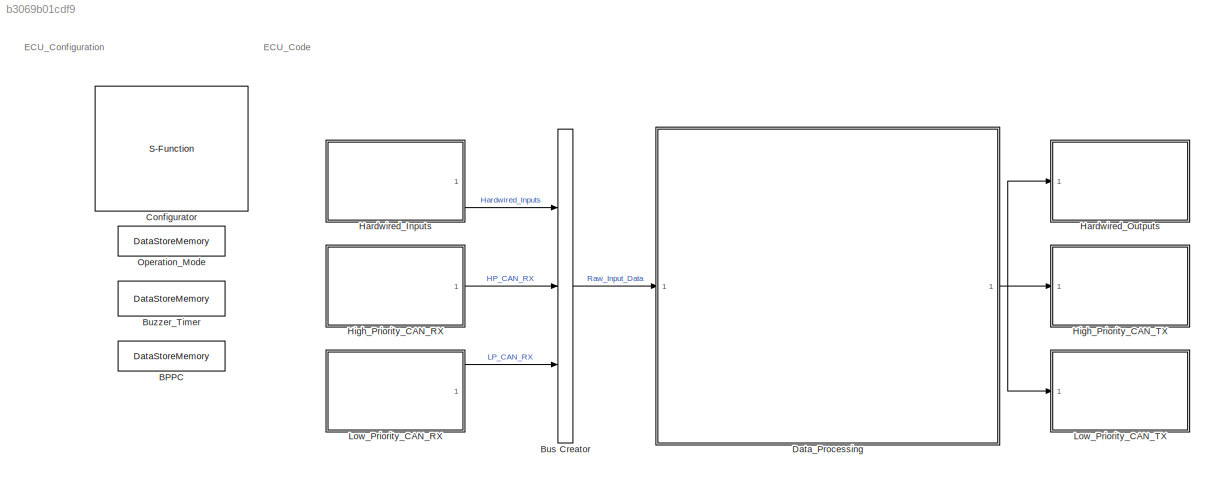
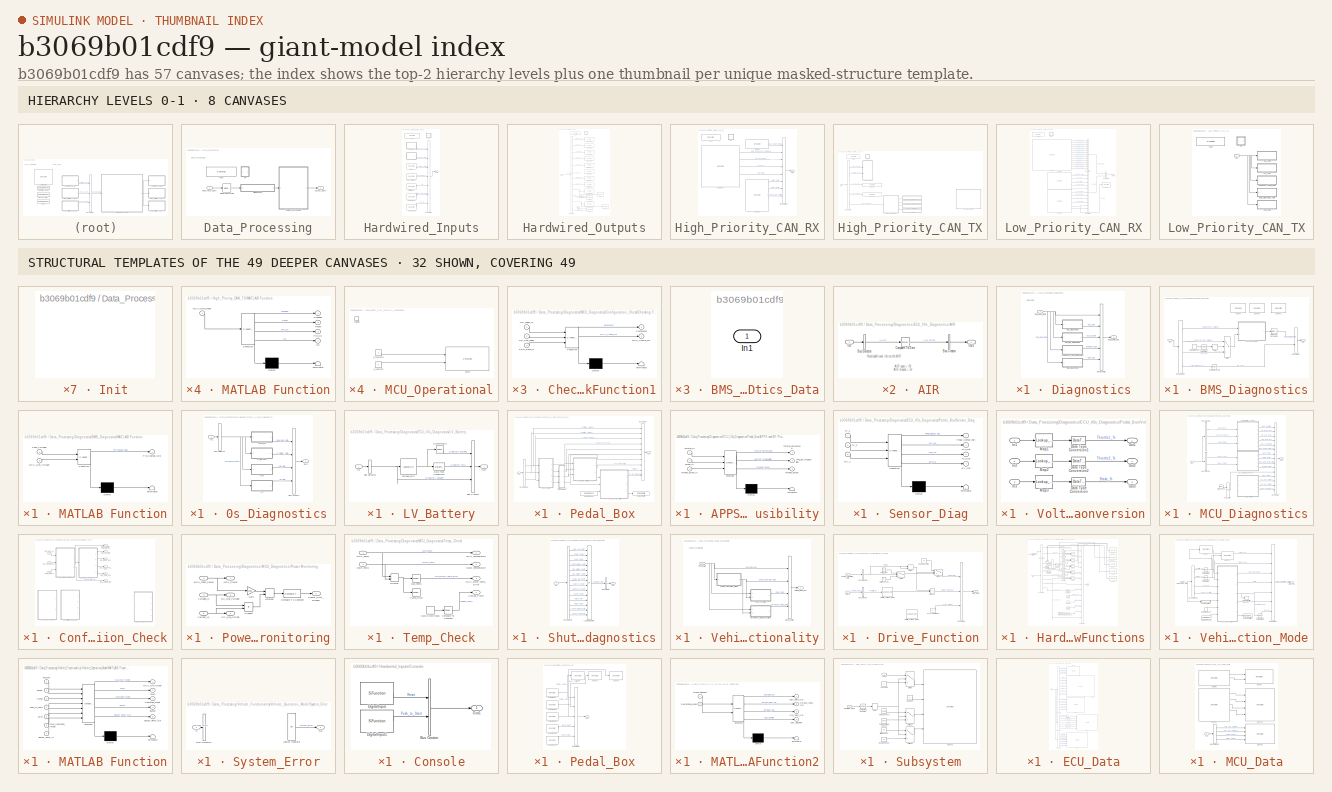
[diagram: thumbnail index - top-2 hierarchy levels (8 canvases) + 32 structural-template representatives of the remaining 49 canvases]
MODEL slx_b3069b01cdf9
KIND model
CONFIG AbsTol = auto
CONFIG FixedStep = 0.0001
CONFIG MaxStep = auto
CONFIG MinStep = auto
CONFIG PostLoadFcn = model_init();
CONFIG RelTol = 1e-3
CONFIG SampleTimeConstraint = Unconstrained
CONFIG Solver = FixedStepDiscrete
CONFIG SolverMode = SingleTasking
CONFIG SolverName = FixedStepDiscrete
CONFIG StartTime = 0.0
CONFIG StopTime = inf
BLOCK [DataStoreMemory] BPPC
  DataStoreName = Brake_Plausibility_Check
  OutDataTypeStr = boolean
  ReadBeforeWriteMsg = warning
  WriteAfterReadMsg = warning
  WriteAfterWriteMsg = warning
BLOCK [BusCreator] Bus Creator
  DisplayOption = bar
  InheritFromInputs = on
  Inputs = 3
  Ports = [3, 1]
BLOCK [DataStoreMemory] Buzzer_Timer
  DataStoreName = Buzzer_Timer
  ReadBeforeWriteMsg = warning
  WriteAfterReadMsg = warning
  WriteAfterWriteMsg = warning
BLOCK [S-Function] Configurator
  EnableBusSupport = off
  FunctionName = NsiSys_Configurator
  OpenFcn = NsiSys_Configurator_OpenFcn();
  Parameters = main,io,nbof_can,can,ccp,flash,nbof_lin,lin,tasks
  Ports = []
  SFunctionDeploymentMode = off
BLOCK [SubSystem] Data_Processing
  OpenFcn = NsiSys_SubSystemTask_OpenFcn();
  Ports = [1, 1]
  RTWFcnName = Data_Processing
  RTWFcnNameOpts = User specified
  RTWFileName = FileTaskFcn
  RTWFileNameOpts = Use function name
  RTWSystemCode = Nonreusable function
  RequestExecContextInheritance = off
  SystemSampleTime = [0.100]
  TreatAsAtomicUnit = on
  Variant = off
BLOCK [SubSystem] Data_Processing/Diagnostics
  Ports = [1, 1]
  RequestExecContextInheritance = off
  Variant = off
BLOCK [SubSystem] Data_Processing/Diagnostics/BMS_Diagnostics
  Ports = [1, 1]
  RequestExecContextInheritance = off
  Variant = off
BLOCK [BusCreator] Data_Processing/Diagnostics/BMS_Diagnostics/Bus Creator
  DisplayOption = bar
  InheritFromInputs = on
  Inputs = 2
  Ports = [2, 1]
BLOCK [BusSelector] Data_Processing/Diagnostics/BMS_Diagnostics/Bus Selector
  OutputSignals = LP_CAN_RX.BMS_Data.Instant_Pack_Voltage,HP_CAN_RX.MCU_DC_Link_Voltage,HP_CAN_RX.SDO_Data,Hardwired_Inputs.IMD_Frequency
  Ports = [1, 4]
BLOCK [Reference] Data_Processing/Diagnostics/BMS_Diagnostics/Compare To Constant  REF=simulink/Logic and Bit
Operations/Compare
To Constant
  Ports = [1, 1]
  SourceBlock = simulink/Logic and Bit\nOperations/Compare\nTo Constant
  SourceType = Compare To Constant
BLOCK [Reference] Data_Processing/Diagnostics/BMS_Diagnostics/Compare To Zero  REF=simulink/Logic and Bit
Operations/Compare
To Zero
  Ports = [1, 1]
  SourceBlock = simulink/Logic and Bit\nOperations/Compare\nTo Zero
  SourceType = Compare To Zero
BLOCK [DataStoreRead] Data_Processing/Diagnostics/BMS_Diagnostics/Data Store Read
  DataStoreName = O_M
  Ports = [0, 1]
BLOCK [DataTypeConversion] Data_Processing/Diagnostics/BMS_Diagnostics/Data Type Conversion
  OutDataTypeStr = uint16
  RndMeth = Floor
  SaturateOnIntegerOverflow = off
BLOCK [Delay] Data_Processing/Diagnostics/BMS_Diagnostics/Delay
  DelayLength = 10
  InitialCondition = 0
  InputPortMap = u0
  Ports = [1, 1]
BLOCK [Inport] Data_Processing/Diagnostics/BMS_Diagnostics/In1
  IconDisplay = Port number
BLOCK [SubSystem] Data_Processing/Diagnostics/BMS_Diagnostics/MATLAB Function
  ErrorFcn = Stateflow.Translate.translate
  PermitHierarchicalResolution = ExplicitOnly
  Ports = [2, 1]
  RequestExecContextInheritance = off
  SFBlockType = MATLAB Function
  TreatAsAtomicUnit = on
  Variant = off
BLOCK [Demux] Data_Processing/Diagnostics/BMS_Diagnostics/MATLAB Function/ Demux 
  Outputs = 1
  Ports = [1, 1]
BLOCK [S-Function] Data_Processing/Diagnostics/BMS_Diagnostics/MATLAB Function/ SFunction 
  EnableBusSupport = on
  FunctionName = sf_sfun
  PortCounts = [2 2]
  Ports = [2, 2]
  SFunctionDeploymentMode = off
  Tag = Stateflow S-Function TBRe18_ECU_V6 4
BLOCK [Terminator] Data_Processing/Diagnostics/BMS_Diagnostics/MATLAB Function/ Terminator 
BLOCK [Inport] Data_Processing/Diagnostics/BMS_Diagnostics/MATLAB Function/MCU_Link_Voltage
  IconDisplay = Port number
  Port = 2
BLOCK [Inport] Data_Processing/Diagnostics/BMS_Diagnostics/MATLAB Function/Pack_Voltage
  IconDisplay = Port number
BLOCK [Outport] Data_Processing/Diagnostics/BMS_Diagnostics/MATLAB Function/Pre_Charge_Hold
  IconDisplay = Port number
BLOCK [Outport] Data_Processing/Diagnostics/BMS_Diagnostics/Out1
  IconDisplay = Port number
BLOCK [Switch] Data_Processing/Diagnostics/BMS_Diagnostics/Switch
  Criteria = u2 > Threshold
  InputSameDT = off
  SaturateOnIntegerOverflow = off
BLOCK [S-Function] Data_Processing/Diagnostics/BMS_Diagnostics/UsbTx
  EnableBusSupport = off
  FunctionName = NsiUsb_Tx
  OpenFcn = NsiUsb_Tx_OpenFcn();
  Parameters = signame,resolution,offset,unite
  Ports = [1]
  SFunctionDeploymentMode = off
BLOCK [S-Function] Data_Processing/Diagnostics/BMS_Diagnostics/UsbTx1
  EnableBusSupport = off
  FunctionName = NsiUsb_Tx
  OpenFcn = NsiUsb_Tx_OpenFcn();
  Parameters = signame,resolution,offset,unite
  Ports = [1]
  SFunctionDeploymentMode = off
BLOCK [S-Function] Data_Processing/Diagnostics/BMS_Diagnostics/UsbTx2
  EnableBusSupport = off
  FunctionName = NsiUsb_Tx
  OpenFcn = NsiUsb_Tx_OpenFcn();
  Parameters = signame,resolution,offset,unite
  Ports = [1]
  SFunctionDeploymentMode = off
BLOCK [BusCreator] Data_Processing/Diagnostics/Bus Creator
  DisplayOption = bar
  InheritFromInputs = on
  Inputs = 5
  Ports = [5, 1]
BLOCK [SubSystem] Data_Processing/Diagnostics/ECU_I//0s_Diagnostics
  Ports = [1, 1]
  RequestExecContextInheritance = off
  Variant = off
BLOCK [SubSystem] Data_Processing/Diagnostics/ECU_I//0s_Diagnostics/AIR
  Ports = [1, 1]
  RequestExecContextInheritance = off
  Variant = off
BLOCK [BusCreator] Data_Processing/Diagnostics/ECU_I//0s_Diagnostics/AIR/Bus Creator
  DisplayOption = bar
  InheritFromInputs = on
  Inputs = 1
  Ports = [1, 1]
BLOCK [BusSelector] Data_Processing/Diagnostics/ECU_I//0s_Diagnostics/AIR/Bus Selector
  OutputSignals = AIR
  Ports = [1, 1]
BLOCK [Reference] Data_Processing/Diagnostics/ECU_I//0s_Diagnostics/AIR/Compare To Zero  REF=simulink/Logic and Bit
Operations/Compare
To Zero
  Ports = [1, 1]
  SourceBlock = simulink/Logic and Bit\nOperations/Compare\nTo Zero
  SourceType = Compare To Zero
BLOCK [Inport] Data_Processing/Diagnostics/ECU_I//0s_Diagnostics/AIR/In1
  IconDisplay = Port number
BLOCK [Outport] Data_Processing/Diagnostics/ECU_I//0s_Diagnostics/AIR/Out1
  IconDisplay = Port number
BLOCK [BusCreator] Data_Processing/Diagnostics/ECU_I//0s_Diagnostics/Bus Creator
  DisplayOption = bar
  InheritFromInputs = on
  Inputs = 4
  Ports = [4, 1]
BLOCK [BusSelector] Data_Processing/Diagnostics/ECU_I//0s_Diagnostics/Bus Selector
  OutputSignals = Hardwired_Inputs
  Ports = [1, 1]
BLOCK [SubSystem] Data_Processing/Diagnostics/ECU_I//0s_Diagnostics/IMD
  Ports = [1, 1]
  RequestExecContextInheritance = off
  Variant = off
BLOCK [BusCreator] Data_Processing/Diagnostics/ECU_I//0s_Diagnostics/IMD/Bus Creator
  DisplayOption = bar
  InheritFromInputs = on
  Inputs = 1
  Ports = [1, 1]
BLOCK [BusSelector] Data_Processing/Diagnostics/ECU_I//0s_Diagnostics/IMD/Bus Selector
  OutputSignals = IMD_Frequency
  Ports = [1, 1]
BLOCK [Reference] Data_Processing/Diagnostics/ECU_I//0s_Diagnostics/IMD/Compare To Zero  REF=simulink/Logic and Bit
Operations/Compare
To Zero
  Ports = [1, 1]
  SourceBlock = simulink/Logic and Bit\nOperations/Compare\nTo Zero
  SourceType = Compare To Zero
BLOCK [Inport] Data_Processing/Diagnostics/ECU_I//0s_Diagnostics/IMD/In1
  IconDisplay = Port number
BLOCK [Outport] Data_Processing/Diagnostics/ECU_I//0s_Diagnostics/IMD/Out1
  IconDisplay = Port number
BLOCK [Inport] Data_Processing/Diagnostics/ECU_I//0s_Diagnostics/In1
  IconDisplay = Port number
BLOCK [SubSystem] Data_Processing/Diagnostics/ECU_I//0s_Diagnostics/LV_Battery
  Ports = [1, 1]
  RequestExecContextInheritance = off
  Variant = off
BLOCK [BusCreator] Data_Processing/Diagnostics/ECU_I//0s_Diagnostics/LV_Battery/Bus Creator
  DisplayOption = bar
  InheritFromInputs = on
  Inputs = 3
  Ports = [3, 1]
BLOCK [BusSelector] Data_Processing/Diagnostics/ECU_I//0s_Diagnostics/LV_Battery/Bus Selector
  OutputSignals = LV_Battery_Voltage
  Ports = [1, 1]
BLOCK [DataTypeConversion] Data_Processing/Diagnostics/ECU_I//0s_Diagnostics/LV_Battery/Data Type Conversion
  OutDataTypeStr = uint8
  RndMeth = Floor
  SaturateOnIntegerOverflow = off
BLOCK [Inport] Data_Processing/Diagnostics/ECU_I//0s_Diagnostics/LV_Battery/In1
  IconDisplay = Port number
BLOCK [Reference] Data_Processing/Diagnostics/ECU_I//0s_Diagnostics/LV_Battery/LV_Warning_%  REF=simulink/Logic and Bit
Operations/Compare
To Constant
  Ports = [1, 1]
  SourceBlock = simulink/Logic and Bit\nOperations/Compare\nTo Constant
  SourceType = Compare To Constant
BLOCK [Outport] Data_Processing/Diagnostics/ECU_I//0s_Diagnostics/LV_Battery/Out1
  IconDisplay = Port number
BLOCK [Lookup_n-D] Data_Processing/Diagnostics/ECU_I//0s_Diagnostics/LV_Battery/Voltage_SOC 
  BreakpointsForDimension1 = [1600, 24000, 25800, 26000, 26400]
  ExtrapMethod = Clip
  InternalRulePriority = Speed
  NumberOfTableDimensions = 1
  Ports = [1, 1]
  RndMeth = Simplest
  Table = [0, 10, 20, 50, 100]
  TableDataTypeStr = Inherit: Inherit from 'Table data'
  UseLastTableValue = on
BLOCK [Outport] Data_Processing/Diagnostics/ECU_I//0s_Diagnostics/Out1
  IconDisplay = Port number
BLOCK [SubSystem] Data_Processing/Diagnostics/ECU_I//0s_Diagnostics/Pedal_Box
  Ports = [1, 1]
  RequestExecContextInheritance = off
  Variant = off
BLOCK [SubSystem] Data_Processing/Diagnostics/ECU_I//0s_Diagnostics/Pedal_Box/APPS and BP Plausibility
  ErrorFcn = Stateflow.Translate.translate
  PermitHierarchicalResolution = ExplicitOnly
  Ports = [3, 3]
  RequestExecContextInheritance = off
  SFBlockType = MATLAB Function
  TreatAsAtomicUnit = on
  Variant = off
BLOCK [Demux] Data_Processing/Diagnostics/ECU_I//0s_Diagnostics/Pedal_Box/APPS and BP Plausibility/ Demux 
  Outputs = 1
  Ports = [1, 1]
BLOCK [S-Function] Data_Processing/Diagnostics/ECU_I//0s_Diagnostics/Pedal_Box/APPS and BP Plausibility/ SFunction 
  EnableBusSupport = on
  FunctionName = sf_sfun
  PortCounts = [3 4]
  Ports = [3, 4]
  SFunctionDeploymentMode = off
  Tag = Stateflow S-Function TBRe18_ECU_V6 13
BLOCK [Terminator] Data_Processing/Diagnostics/ECU_I//0s_Diagnostics/Pedal_Box/APPS and BP Plausibility/ Terminator 
BLOCK [Outport] Data_Processing/Diagnostics/ECU_I//0s_Diagnostics/Pedal_Box/APPS and BP Plausibility/APPS_BP_Implausibility
  IconDisplay = Port number
  Port = 2
BLOCK [Inport] Data_Processing/Diagnostics/ECU_I//0s_Diagnostics/Pedal_Box/APPS and BP Plausibility/Brake_In
  IconDisplay = Port number
  Port = 2
BLOCK [Outport] Data_Processing/Diagnostics/ECU_I//0s_Diagnostics/Pedal_Box/APPS and BP Plausibility/Previous_Brake
  IconDisplay = Port number
  Port = 3
BLOCK [Inport] Data_Processing/Diagnostics/ECU_I//0s_Diagnostics/Pedal_Box/APPS and BP Plausibility/Previous_Brake_In
  IconDisplay = Port number
  Port = 3
BLOCK [Inport] Data_Processing/Diagnostics/ECU_I//0s_Diagnostics/Pedal_Box/APPS and BP Plausibility/Throttle_In
  IconDisplay = Port number
BLOCK [Outport] Data_Processing/Diagnostics/ECU_I//0s_Diagnostics/Pedal_Box/APPS and BP Plausibility/Throttle_Percentage
  IconDisplay = Port number
BLOCK [SubSystem] Data_Processing/Diagnostics/ECU_I//0s_Diagnostics/Pedal_Box/APPS_Implausibility_Check
  ErrorFcn = Stateflow.Translate.translate
  PermitHierarchicalResolution = ExplicitOnly
  Ports = [3, 2]
  RequestExecContextInheritance = off
  SFBlockType = MATLAB Function
  TreatAsAtomicUnit = on
  Variant = off
BLOCK [Demux] Data_Processing/Diagnostics/ECU_I//0s_Diagnostics/Pedal_Box/APPS_Implausibility_Check/ Demux 
  Outputs = 1
  Ports = [1, 1]
BLOCK [S-Function] Data_Processing/Diagnostics/ECU_I//0s_Diagnostics/Pedal_Box/APPS_Implausibility_Check/ SFunction 
  EnableBusSupport = on
  FunctionName = sf_sfun
  PortCounts = [3 3]
  Ports = [3, 3]
  SFunctionDeploymentMode = off
  Tag = Stateflow S-Function TBRe18_ECU_V6 12
BLOCK [Terminator] Data_Processing/Diagnostics/ECU_I//0s_Diagnostics/Pedal_Box/APPS_Implausibility_Check/ Terminator 
BLOCK [Outport] Data_Processing/Diagnostics/ECU_I//0s_Diagnostics/Pedal_Box/APPS_Implausibility_Check/APPS_Implausbility
  IconDisplay = Port number
BLOCK [Inport] Data_Processing/Diagnostics/ECU_I//0s_Diagnostics/Pedal_Box/APPS_Implausibility_Check/Pedal_Sensor_Fail
  IconDisplay = Port number
BLOCK [Inport] Data_Processing/Diagnostics/ECU_I//0s_Diagnostics/Pedal_Box/APPS_Implausibility_Check/Throttle1_Per
  IconDisplay = Port number
  Port = 2
BLOCK [Inport] Data_Processing/Diagnostics/ECU_I//0s_Diagnostics/Pedal_Box/APPS_Implausibility_Check/Throttle2_Per
  IconDisplay = Port number
  Port = 3
BLOCK [Outport] Data_Processing/Diagnostics/ECU_I//0s_Diagnostics/Pedal_Box/APPS_Implausibility_Check/Throttle_Percentage
  IconDisplay = Port number
  Port = 2
BLOCK [BusCreator] Data_Processing/Diagnostics/ECU_I//0s_Diagnostics/Pedal_Box/Bus Creator
  DisplayOption = bar
  InheritFromInputs = on
  Inputs = 10
  Ports = [10, 1]
BLOCK [BusSelector] Data_Processing/Diagnostics/ECU_I//0s_Diagnostics/Pedal_Box/Bus Selector
  OutputSignals = Pedal_Box_Data.Throttle1_Voltage,Pedal_Box_Data.Throttle2_Voltage,Pedal_Box_Data.Brake_Voltage
  Ports = [1, 3]
BLOCK [DataStoreRead] Data_Processing/Diagnostics/ECU_I//0s_Diagnostics/Pedal_Box/Data Store Read
  DataStoreName = Brake_Plausibility_Check
  Ports = [0, 1]
BLOCK [DataStoreWrite] Data_Processing/Diagnostics/ECU_I//0s_Diagnostics/Pedal_Box/Data Store Write
  DataStoreName = Brake_Plausibility_Check
  Ports = [1]
BLOCK [Inport] Data_Processing/Diagnostics/ECU_I//0s_Diagnostics/Pedal_Box/In1
  IconDisplay = Port number
BLOCK [Outport] Data_Processing/Diagnostics/ECU_I//0s_Diagnostics/Pedal_Box/Out1
  IconDisplay = Port number
BLOCK [SubSystem] Data_Processing/Diagnostics/ECU_I//0s_Diagnostics/Pedal_Box/Sensor_Diag
  ErrorFcn = Stateflow.Translate.translate
  PermitHierarchicalResolution = ExplicitOnly
  Ports = [3, 4]
  RequestExecContextInheritance = off
  SFBlockType = MATLAB Function
  TreatAsAtomicUnit = on
  Variant = off
BLOCK [Demux] Data_Processing/Diagnostics/ECU_I//0s_Diagnostics/Pedal_Box/Sensor_Diag/ Demux 
  Outputs = 1
  Ports = [1, 1]
BLOCK [S-Function] Data_Processing/Diagnostics/ECU_I//0s_Diagnostics/Pedal_Box/Sensor_Diag/ SFunction 
  EnableBusSupport = on
  FunctionName = sf_sfun
  PortCounts = [3 5]
  Ports = [3, 5]
  SFunctionDeploymentMode = off
  Tag = Stateflow S-Function TBRe18_ECU_V6 11
BLOCK [Terminator] Data_Processing/Diagnostics/ECU_I//0s_Diagnostics/Pedal_Box/Sensor_Diag/ Terminator 
BLOCK [Inport] Data_Processing/Diagnostics/ECU_I//0s_Diagnostics/Pedal_Box/Sensor_Diag/BV_1
  IconDisplay = Port number
  Port = 3
BLOCK [Outport] Data_Processing/Diagnostics/ECU_I//0s_Diagnostics/Pedal_Box/Sensor_Diag/BV_Out
  IconDisplay = Port number
  Port = 4
BLOCK [Outport] Data_Processing/Diagnostics/ECU_I//0s_Diagnostics/Pedal_Box/Sensor_Diag/Pedal_Sensor_Fail
  IconDisplay = Port number
BLOCK [Outport] Data_Processing/Diagnostics/ECU_I//0s_Diagnostics/Pedal_Box/Sensor_Diag/TV1_Out
  IconDisplay = Port number
  Port = 2
BLOCK [Outport] Data_Processing/Diagnostics/ECU_I//0s_Diagnostics/Pedal_Box/Sensor_Diag/TV2_Out
  IconDisplay = Port number
  Port = 3
BLOCK [Inport] Data_Processing/Diagnostics/ECU_I//0s_Diagnostics/Pedal_Box/Sensor_Diag/TV_1
  IconDisplay = Port number
BLOCK [Inport] Data_Processing/Diagnostics/ECU_I//0s_Diagnostics/Pedal_Box/Sensor_Diag/TV_2
  IconDisplay = Port number
  Port = 2
BLOCK [SubSystem] Data_Processing/Diagnostics/ECU_I//0s_Diagnostics/Pedal_Box/Voltage_to_% Conversion
  Ports = [3, 3]
  RequestExecContextInheritance = off
  Variant = off
BLOCK [DataTypeConversion] Data_Processing/Diagnostics/ECU_I//0s_Diagnostics/Pedal_Box/Voltage_to_% Conversion/Data Type Conversion
  OutDataTypeStr = uint8
  RndMeth = Floor
  SaturateOnIntegerOverflow = off
BLOCK [DataTypeConversion] Data_Processing/Diagnostics/ECU_I//0s_Diagnostics/Pedal_Box/Voltage_to_% Conversion/Data Type Conversion1
  OutDataTypeStr = uint8
  RndMeth = Floor
  SaturateOnIntegerOverflow = off
BLOCK [DataTypeConversion] Data_Processing/Diagnostics/ECU_I//0s_Diagnostics/Pedal_Box/Voltage_to_% Conversion/Data Type Conversion2
  OutDataTypeStr = uint8
  RndMeth = Floor
  SaturateOnIntegerOverflow = off
BLOCK [Inport] Data_Processing/Diagnostics/ECU_I//0s_Diagnostics/Pedal_Box/Voltage_to_% Conversion/In1
  IconDisplay = Port number
BLOCK [Inport] Data_Processing/Diagnostics/ECU_I//0s_Diagnostics/Pedal_Box/Voltage_to_% Conversion/In2
  IconDisplay = Port number
  Port = 2
BLOCK [Inport] Data_Processing/Diagnostics/ECU_I//0s_Diagnostics/Pedal_Box/Voltage_to_% Conversion/In3
  IconDisplay = Port number
  Port = 3
BLOCK [Lookup_n-D] Data_Processing/Diagnostics/ECU_I//0s_Diagnostics/Pedal_Box/Voltage_to_% Conversion/Map1
  BreakpointsForDimension1 = [5400,6800]
  ExtrapMethod = Clip
  InternalRulePriority = Speed
  NumberOfTableDimensions = 1
  Ports = [1, 1]
  RndMeth = Simplest
  Table = [0,100]
  UseLastTableValue = on
BLOCK [Lookup_n-D] Data_Processing/Diagnostics/ECU_I//0s_Diagnostics/Pedal_Box/Voltage_to_% Conversion/Map2
  BreakpointsForDimension1 = [6900,8700]
  ExtrapMethod = Clip
  InternalRulePriority = Speed
  NumberOfTableDimensions = 1
  Ports = [1, 1]
  RndMeth = Simplest
  Table = [0,100]
  UseLastTableValue = on
BLOCK [Lookup_n-D] Data_Processing/Diagnostics/ECU_I//0s_Diagnostics/Pedal_Box/Voltage_to_% Conversion/Map3
  BreakpointsForDimension1 = [2800,5600]
  ExtrapMethod = Clip
  InternalRulePriority = Speed
  NumberOfTableDimensions = 1
  Ports = [1, 1]
  RndMeth = Simplest
  Table = [0,100]
  UseLastTableValue = on
BLOCK [Outport] Data_Processing/Diagnostics/ECU_I//0s_Diagnostics/Pedal_Box/Voltage_to_% Conversion/Out1
  IconDisplay = Port number
BLOCK [Outport] Data_Processing/Diagnostics/ECU_I//0s_Diagnostics/Pedal_Box/Voltage_to_% Conversion/Out2
  IconDisplay = Port number
  Port = 2
BLOCK [Outport] Data_Processing/Diagnostics/ECU_I//0s_Diagnostics/Pedal_Box/Voltage_to_% Conversion/Out3
  IconDisplay = Port number
  Port = 3
BLOCK [Outport] Data_Processing/Diagnostics/Input_Data_Bus
  IconDisplay = Port number
BLOCK [SubSystem] Data_Processing/Diagnostics/MCU_Diagnostics
  Ports = [1, 1]
  RequestExecContextInheritance = off
  Variant = off
BLOCK [BusCreator] Data_Processing/Diagnostics/MCU_Diagnostics/Bus Creator
  DisplayOption = bar
  InheritFromInputs = on
  Inputs = 15
  Ports = [15, 1]
BLOCK [BusSelector] Data_Processing/Diagnostics/MCU_Diagnostics/Bus Selector
  OutputSignals = HP_CAN_RX.Motor_Temp,HP_CAN_RX.MCU_Temp
  Ports = [1, 2]
BLOCK [BusSelector] Data_Processing/Diagnostics/MCU_Diagnostics/Bus Selector1
  OutputSignals = HP_CAN_RX.OD_Index,HP_CAN_RX.OD_Sub_Index,HP_CAN_RX.SDO_Data
  Ports = [1, 3]
BLOCK [SubSystem] Data_Processing/Diagnostics/MCU_Diagnostics/Configuration_Check
  Commented = on
  Ports = [3, 6]
  RequestExecContextInheritance = off
  Variant = off
BLOCK [SubSystem] Data_Processing/Diagnostics/MCU_Diagnostics/Configuration_Check/Checking Function1
  Commented = on
  ErrorFcn = Stateflow.Translate.translate
  PermitHierarchicalResolution = ExplicitOnly
  Ports = [3, 2]
  RequestExecContextInheritance = off
  SFBlockType = MATLAB Function
  TreatAsAtomicUnit = on
  Variant = off
BLOCK [Demux] Data_Processing/Diagnostics/MCU_Diagnostics/Configuration_Check/Checking Function1/ Demux 
  Outputs = 1
  Ports = [1, 1]
BLOCK [S-Function] Data_Processing/Diagnostics/MCU_Diagnostics/Configuration_Check/Checking Function1/ SFunction 
  EnableBusSupport = on
  FunctionName = sf_sfun
  PortCounts = [3 3]
  Ports = [3, 3]
  SFunctionDeploymentMode = off
  Tag = Stateflow S-Function TBRe18_ECU_V6 5
BLOCK [Terminator] Data_Processing/Diagnostics/MCU_Diagnostics/Configuration_Check/Checking Function1/ Terminator 
BLOCK [Outport] Data_Processing/Diagnostics/MCU_Diagnostics/Configuration_Check/Checking Function1/MCU_Config_Ok
  IconDisplay = Port number
  Port = 2
BLOCK [Inport] Data_Processing/Diagnostics/MCU_Diagnostics/Configuration_Check/Checking Function1/OD_Index_In
  IconDisplay = Port number
BLOCK [Inport] Data_Processing/Diagnostics/MCU_Diagnostics/Configuration_Check/Checking Function1/OD_Sub_Index
  IconDisplay = Port number
  Port = 2
BLOCK [Outport] Data_Processing/Diagnostics/MCU_Diagnostics/Configuration_Check/Checking Function1/Parameter
  IconDisplay = Port number
BLOCK [Inport] Data_Processing/Diagnostics/MCU_Diagnostics/Configuration_Check/Checking Function1/SDO_Data_In
  IconDisplay = Port number
  Port = 3
BLOCK [SubSystem] Data_Processing/Diagnostics/MCU_Diagnostics/Configuration_Check/Checking Function2
  ErrorFcn = Stateflow.Translate.translate
  PermitHierarchicalResolution = ExplicitOnly
  Ports = [3, 2]
  RequestExecContextInheritance = off
  SFBlockType = MATLAB Function
  TreatAsAtomicUnit = on
  Variant = off
BLOCK [Demux] Data_Processing/Diagnostics/MCU_Diagnostics/Configuration_Check/Checking Function2/ Demux 
  Outputs = 1
  Ports = [1, 1]
BLOCK [S-Function] Data_Processing/Diagnostics/MCU_Diagnostics/Configuration_Check/Checking Function2/ SFunction 
  EnableBusSupport = on
  FunctionName = sf_sfun
  PortCounts = [3 3]
  Ports = [3, 3]
  SFunctionDeploymentMode = off
  Tag = Stateflow S-Function TBRe18_ECU_V6 8
BLOCK [Terminator] Data_Processing/Diagnostics/MCU_Diagnostics/Configuration_Check/Checking Function2/ Terminator 
BLOCK [Outport] Data_Processing/Diagnostics/MCU_Diagnostics/Configuration_Check/Checking Function2/MCU_Config_Error
  IconDisplay = Port number
  Port = 2
BLOCK [Inport] Data_Processing/Diagnostics/MCU_Diagnostics/Configuration_Check/Checking Function2/OD_Index
  IconDisplay = Port number
BLOCK [Inport] Data_Processing/Diagnostics/MCU_Diagnostics/Configuration_Check/Checking Function2/OD_Sub_Index
  IconDisplay = Port number
  Port = 2
BLOCK [Outport] Data_Processing/Diagnostics/MCU_Diagnostics/Configuration_Check/Checking Function2/Parameter
  IconDisplay = Port number
BLOCK [Inport] Data_Processing/Diagnostics/MCU_Diagnostics/Configuration_Check/Checking Function2/SDO_Data
  IconDisplay = Port number
  Port = 3
BLOCK [Outport] Data_Processing/Diagnostics/MCU_Diagnostics/Configuration_Check/MCU_Config_Error
  IconDisplay = Port number
  Port = 5
BLOCK [Outport] Data_Processing/Diagnostics/MCU_Diagnostics/Configuration_Check/MCU_Config_Parameter_No
  IconDisplay = Port number
  Port = 6
BLOCK [Inport] Data_Processing/Diagnostics/MCU_Diagnostics/Configuration_Check/OD_Index_In
  IconDisplay = Port number
BLOCK [Outport] Data_Processing/Diagnostics/MCU_Diagnostics/Configuration_Check/OD_Index_Out
  IconDisplay = Port number
  Port = 2
BLOCK [Inport] Data_Processing/Diagnostics/MCU_Diagnostics/Configuration_Check/OD_Sub_Index_In
  IconDisplay = Port number
  Port = 2
BLOCK [Outport] Data_Processing/Diagnostics/MCU_Diagnostics/Configuration_Check/OD_Sub_Index_Out
  IconDisplay = Port number
  Port = 3
BLOCK [Inport] Data_Processing/Diagnostics/MCU_Diagnostics/Configuration_Check/SDO_Data_In
  IconDisplay = Port number
  Port = 3
BLOCK [Outport] Data_Processing/Diagnostics/MCU_Diagnostics/Configuration_Check/SDO_Data_Out
  IconDisplay = Port number
  Port = 4
BLOCK [SubSystem] Data_Processing/Diagnostics/MCU_Diagnostics/Configuration_Check/SDO_Read_Request
  ErrorFcn = Stateflow.Translate.translate
  PermitHierarchicalResolution = ExplicitOnly
  Ports = [1, 4]
  RequestExecContextInheritance = off
  SFBlockType = MATLAB Function
  TreatAsAtomicUnit = on
  Variant = off
BLOCK [Demux] Data_Processing/Diagnostics/MCU_Diagnostics/Configuration_Check/SDO_Read_Request/ Demux 
  Outputs = 1
  Ports = [1, 1]
BLOCK [S-Function] Data_Processing/Diagnostics/MCU_Diagnostics/Configuration_Check/SDO_Read_Request/ SFunction 
  EnableBusSupport = on
  FunctionName = sf_sfun
  PortCounts = [1 5]
  Ports = [1, 5]
  SFunctionDeploymentMode = off
  Tag = Stateflow S-Function TBRe18_ECU_V6 7
BLOCK [Terminator] Data_Processing/Diagnostics/MCU_Diagnostics/Configuration_Check/SDO_Read_Request/ Terminator 
BLOCK [Outport] Data_Processing/Diagnostics/MCU_Diagnostics/Configuration_Check/SDO_Read_Request/OD_Index_Out
  IconDisplay = Port number
  Port = 2
BLOCK [Outport] Data_Processing/Diagnostics/MCU_Diagnostics/Configuration_Check/SDO_Read_Request/OD_Sub_Index_Out
  IconDisplay = Port number
  Port = 3
BLOCK [Inport] Data_Processing/Diagnostics/MCU_Diagnostics/Configuration_Check/SDO_Read_Request/Parameter
  IconDisplay = Port number
BLOCK [Outport] Data_Processing/Diagnostics/MCU_Diagnostics/Configuration_Check/SDO_Read_Request/SDO_Data_Out
  IconDisplay = Port number
  Port = 4
BLOCK [Outport] Data_Processing/Diagnostics/MCU_Diagnostics/Configuration_Check/SDO_Read_Request/SDO_Specifier
  IconDisplay = Port number
BLOCK [SubSystem] Data_Processing/Diagnostics/MCU_Diagnostics/Configuration_Check/SDO_Read_Request1
  Commented = on
  ErrorFcn = Stateflow.Translate.translate
  PermitHierarchicalResolution = ExplicitOnly
  Ports = [1, 4]
  RequestExecContextInheritance = off
  SFBlockType = MATLAB Function
  TreatAsAtomicUnit = on
  Variant = off
BLOCK [Demux] Data_Processing/Diagnostics/MCU_Diagnostics/Configuration_Check/SDO_Read_Request1/ Demux 
  Outputs = 1
  Ports = [1, 1]
BLOCK [S-Function] Data_Processing/Diagnostics/MCU_Diagnostics/Configuration_Check/SDO_Read_Request1/ SFunction 
  EnableBusSupport = on
  FunctionName = sf_sfun
  PortCounts = [1 5]
  Ports = [1, 5]
  SFunctionDeploymentMode = off
  Tag = Stateflow S-Function TBRe18_ECU_V6 9
BLOCK [Terminator] Data_Processing/Diagnostics/MCU_Diagnostics/Configuration_Check/SDO_Read_Request1/ Terminator 
BLOCK [Outport] Data_Processing/Diagnostics/MCU_Diagnostics/Configuration_Check/SDO_Read_Request1/OD_Index_Out
  IconDisplay = Port number
  Port = 2
BLOCK [Outport] Data_Processing/Diagnostics/MCU_Diagnostics/Configuration_Check/SDO_Read_Request1/OD_Sub_Index_Out
  IconDisplay = Port number
  Port = 3
BLOCK [Inport] Data_Processing/Diagnostics/MCU_Diagnostics/Configuration_Check/SDO_Read_Request1/Parameter
  IconDisplay = Port number
BLOCK [Outport] Data_Processing/Diagnostics/MCU_Diagnostics/Configuration_Check/SDO_Read_Request1/SDO_Data_Out
  IconDisplay = Port number
  Port = 4
BLOCK [Outport] Data_Processing/Diagnostics/MCU_Diagnostics/Configuration_Check/SDO_Read_Request1/SDO_Specifier
  IconDisplay = Port number
BLOCK [Outport] Data_Processing/Diagnostics/MCU_Diagnostics/Configuration_Check/SDO_Specifier
  IconDisplay = Port number
BLOCK [SubSystem] Data_Processing/Diagnostics/MCU_Diagnostics/Configuration_Check/SDO_Write_Request1
  Commented = on
  ErrorFcn = Stateflow.Translate.translate
  PermitHierarchicalResolution = ExplicitOnly
  Ports = [1, 4]
  RequestExecContextInheritance = off
  SFBlockType = MATLAB Function
  TreatAsAtomicUnit = on
  Variant = off
BLOCK [Demux] Data_Processing/Diagnostics/MCU_Diagnostics/Configuration_Check/SDO_Write_Request1/ Demux 
  Outputs = 1
  Ports = [1, 1]
BLOCK [S-Function] Data_Processing/Diagnostics/MCU_Diagnostics/Configuration_Check/SDO_Write_Request1/ SFunction 
  EnableBusSupport = on
  FunctionName = sf_sfun
  PortCounts = [1 5]
  Ports = [1, 5]
  SFunctionDeploymentMode = off
  Tag = Stateflow S-Function TBRe18_ECU_V6 6
BLOCK [Terminator] Data_Processing/Diagnostics/MCU_Diagnostics/Configuration_Check/SDO_Write_Request1/ Terminator 
BLOCK [Outport] Data_Processing/Diagnostics/MCU_Diagnostics/Configuration_Check/SDO_Write_Request1/OD_Index_Out
  IconDisplay = Port number
  Port = 2
BLOCK [Outport] Data_Processing/Diagnostics/MCU_Diagnostics/Configuration_Check/SDO_Write_Request1/OD_Sub_Index_Out
  IconDisplay = Port number
  Port = 3
BLOCK [Inport] Data_Processing/Diagnostics/MCU_Diagnostics/Configuration_Check/SDO_Write_Request1/Parameter
  IconDisplay = Port number
BLOCK [Outport] Data_Processing/Diagnostics/MCU_Diagnostics/Configuration_Check/SDO_Write_Request1/SDO_Data_Out
  IconDisplay = Port number
  Port = 4
BLOCK [Outport] Data_Processing/Diagnostics/MCU_Diagnostics/Configuration_Check/SDO_Write_Request1/SDO_Specifier
  IconDisplay = Port number
BLOCK [Reference] Data_Processing/Diagnostics/MCU_Diagnostics/Error_Check  REF=simulink/Logic and Bit
Operations/Compare
To Zero
  Commented = on
  Ports = [1, 1]
  SourceBlock = simulink/Logic and Bit\nOperations/Compare\nTo Zero
  SourceType = Compare To Zero
BLOCK [Inport] Data_Processing/Diagnostics/MCU_Diagnostics/In1
  IconDisplay = Port number
BLOCK [Logic] Data_Processing/Diagnostics/MCU_Diagnostics/MCU_Error
  AllPortsSameDT = off
  Commented = on
  Operator = OR
  OutDataTypeStr = boolean
  Ports = [2, 1]
BLOCK [Outport] Data_Processing/Diagnostics/MCU_Diagnostics/Out1
  IconDisplay = Port number
BLOCK [SubSystem] Data_Processing/Diagnostics/MCU_Diagnostics/Power Monitoring
  Commented = on
  Ports = [3, 4]
  RequestExecContextInheritance = off
  Variant = off
BLOCK [Reference] Data_Processing/Diagnostics/MCU_Diagnostics/Power Monitoring/Compare To Constant  REF=simulink/Logic and Bit
Operations/Compare
To Constant
  Ports = [1, 1]
  SourceBlock = simulink/Logic and Bit\nOperations/Compare\nTo Constant
  SourceType = Compare To Constant
BLOCK [Inport] Data_Processing/Diagnostics/MCU_Diagnostics/Power Monitoring/Current_In
  IconDisplay = Port number
  Port = 3
BLOCK [Outport] Data_Processing/Diagnostics/MCU_Diagnostics/Power Monitoring/DC_Link_Current
  IconDisplay = Port number
  Port = 3
BLOCK [Outport] Data_Processing/Diagnostics/MCU_Diagnostics/Power Monitoring/DC_Link_Voltage
  IconDisplay = Port number
  Port = 2
BLOCK [Gain] Data_Processing/Diagnostics/MCU_Diagnostics/Power Monitoring/Gain
  Gain = 1000
  OutDataTypeStr = Inherit: Inherit via internal rule
  ParamDataTypeStr = Inherit: Inherit via internal rule
  SaturateOnIntegerOverflow = off
BLOCK [Inport] Data_Processing/Diagnostics/MCU_Diagnostics/Power Monitoring/MCU_Input_Power
  IconDisplay = Port number
BLOCK [Outport] Data_Processing/Diagnostics/MCU_Diagnostics/Power Monitoring/MCU_Power
  IconDisplay = Port number
BLOCK [MinMax] Data_Processing/Diagnostics/MCU_Diagnostics/Power Monitoring/MinMax
  Function = max
  InputSameDT = off
  Inputs = 2
  Ports = [2, 1]
  SaturateOnIntegerOverflow = off
BLOCK [Outport] Data_Processing/Diagnostics/MCU_Diagnostics/Power Monitoring/Power_Limit_Breach
  IconDisplay = Port number
  Port = 4
BLOCK [Product] Data_Processing/Diagnostics/MCU_Diagnostics/Power Monitoring/Product
  InputSameDT = off
  OutDataTypeStr = Inherit: Inherit via internal rule
  Ports = [2, 1]
  RndMeth = Floor
  SaturateOnIntegerOverflow = off
BLOCK [Inport] Data_Processing/Diagnostics/MCU_Diagnostics/Power Monitoring/Voltage_In
  IconDisplay = Port number
  Port = 2
BLOCK [SubSystem] Data_Processing/Diagnostics/MCU_Diagnostics/Temp_Check
  Ports = [2, 4]
  RequestExecContextInheritance = off
  Variant = off
BLOCK [Reference] Data_Processing/Diagnostics/MCU_Diagnostics/Temp_Check/Compare To Constant  REF=simulink/Logic and Bit
Operations/Compare
To Constant
  Ports = [1, 1]
  SourceBlock = simulink/Logic and Bit\nOperations/Compare\nTo Constant
  SourceType = Compare To Constant
BLOCK [Outport] Data_Processing/Diagnostics/MCU_Diagnostics/Temp_Check/Coolant_Pump
  IconDisplay = Port number
  Port = 4
BLOCK [DataStoreRead] Data_Processing/Diagnostics/MCU_Diagnostics/Temp_Check/Data Store Read
  DataStoreName = O_M
  Ports = [0, 1]
BLOCK [Outport] Data_Processing/Diagnostics/MCU_Diagnostics/Temp_Check/MCU_Motor_Temp_Error
  IconDisplay = Port number
  Port = 3
BLOCK [Inport] Data_Processing/Diagnostics/MCU_Diagnostics/Temp_Check/MCU_Temp
  IconDisplay = Port number
BLOCK [Outport] Data_Processing/Diagnostics/MCU_Diagnostics/Temp_Check/MCU_Temperature
  IconDisplay = Port number
BLOCK [Reference] Data_Processing/Diagnostics/MCU_Diagnostics/Temp_Check/Max_Temp  REF=simulink/Logic and Bit
Operations/Compare
To Constant
  Ports = [1, 1]
  SourceBlock = simulink/Logic and Bit\nOperations/Compare\nTo Constant
  SourceType = Compare To Constant
BLOCK [MinMax] Data_Processing/Diagnostics/MCU_Diagnostics/Temp_Check/MinMax
  Function = max
  InputSameDT = off
  Inputs = 2
  Ports = [2, 1]
  SaturateOnIntegerOverflow = off
BLOCK [Inport] Data_Processing/Diagnostics/MCU_Diagnostics/Temp_Check/Motor_Temp
  IconDisplay = Port number
  Port = 2
BLOCK [Outport] Data_Processing/Diagnostics/MCU_Diagnostics/Temp_Check/Motor_Temperature
  IconDisplay = Port number
  Port = 2
BLOCK [Reference] Data_Processing/Diagnostics/MCU_Diagnostics/Temp_Check/Pump_Start  REF=simulink/Logic and Bit
Operations/Compare
To Constant
  Ports = [1, 1]
  SourceBlock = simulink/Logic and Bit\nOperations/Compare\nTo Constant
  SourceType = Compare To Constant
BLOCK [Inport] Data_Processing/Diagnostics/Raw_Input_Data
  IconDisplay = Port number
BLOCK [SubSystem] Data_Processing/Diagnostics/Shutdown_System_Diagnostics
  Ports = [1, 1]
  RequestExecContextInheritance = off
  Variant = off
BLOCK [BusCreator] Data_Processing/Diagnostics/Shutdown_System_Diagnostics/Bus Creator
  DisplayOption = bar
  InheritFromInputs = on
  Inputs = 1
  Ports = [1, 1]
BLOCK [BusSelector] Data_Processing/Diagnostics/Shutdown_System_Diagnostics/Bus Selector
  OutputSignals = LP_CAN_RX.Shutdown_Data.High_AIR_Fault,LP_CAN_RX.Shutdown_Data.TSMS_Fault,LP_CAN_RX.Shutdown_Data.HVD_Fault,LP_CAN_RX.Shutdown_Data.Front_Return_Fault,LP_CAN_RX.Shutdown_Data.E2_Switch_Fault,LP_CAN_RX.Shutdown_Data.E1_Switch_Fault,LP_CAN_RX.Shutdown_Data.Latch_Out_Fault,LP_CAN_RX.Shutdown_Data.Latch_In_Fault,LP_CAN_RX.Shutdown_Data.BSPD_TSI_Fault,LP_CAN_RX.Shutdown_Data.BSPD_Fault,LP_CAN_RX.Shutdo...<+132ch>
  Ports = [1, 14]
BLOCK [Inport] Data_Processing/Diagnostics/Shutdown_System_Diagnostics/In1
  IconDisplay = Port number
BLOCK [Logic] Data_Processing/Diagnostics/Shutdown_System_Diagnostics/Logical Operator
  AllPortsSameDT = off
  Inputs = 14
  Operator = OR
  OutDataTypeStr = boolean
  Ports = [14, 1]
BLOCK [Outport] Data_Processing/Diagnostics/Shutdown_System_Diagnostics/Out1
  IconDisplay = Port number
BLOCK [SubSystem] Data_Processing/Init
  CopyFcn = cccopyfcn(gcb)
  OpenFcn = ccopenfcn('System Initialize Function')
  Ports = []
  RequestExecContextInheritance = off
  Variant = off
BLOCK [Outport] Data_Processing/Output_Data
  IconDisplay = Port number
BLOCK [Inport] Data_Processing/Raw_Input_Data
  IconDisplay = Port number
BLOCK [SignalConversion] Data_Processing/Signal Conversion
BLOCK [S-Function] Data_Processing/Task
  EnableBusSupport = off
  FunctionName = NsiSys_TaskREF
  OpenFcn = NsiSys_Task_OpenFcn();
  Parameters = task_initialised,task_periodic, task_sampletime,task_name,task_event,task_offset
  Ports = []
  SFunctionDeploymentMode = off
BLOCK [SubSystem] Data_Processing/Vehicle_Functionality
  Ports = [1, 1]
  RequestExecContextInheritance = off
  Variant = off
BLOCK [BusCreator] Data_Processing/Vehicle_Functionality/Bus Creator
  DisplayOption = bar
  InheritFromInputs = on
  Inputs = 4
  Ports = [4, 1]
BLOCK [SubSystem] Data_Processing/Vehicle_Functionality/Drive_Function
  Ports = [2, 1]
  RequestExecContextInheritance = off
  Variant = off
BLOCK [BusCreator] Data_Processing/Vehicle_Functionality/Drive_Function/Bus Creator
  DisplayOption = bar
  InheritFromInputs = on
  Inputs = 3
  Ports = [3, 1]
BLOCK [BusSelector] Data_Processing/Vehicle_Functionality/Drive_Function/Bus Selector
  OutputSignals = ECU_IO_Data.Pedal_Box_Data.Throttle_%
  Ports = [1, 1]
BLOCK [BusSelector] Data_Processing/Vehicle_Functionality/Drive_Function/Bus Selector1
  OutputSignals = PWM
  Ports = [1, 1]
BLOCK [Inport] Data_Processing/Vehicle_Functionality/Drive_Function/Data_In
  IconDisplay = Port number
BLOCK [Delay] Data_Processing/Vehicle_Functionality/Drive_Function/Delay
  DelayLength = 5
  ExternalReset = Falling
  InputPortMap = u0,r5
  Ports = [2, 1]
BLOCK [Outport] Data_Processing/Vehicle_Functionality/Drive_Function/Drive_Data
  IconDisplay = Port number
BLOCK [Constant] Data_Processing/Vehicle_Functionality/Drive_Function/ENABLE_ PWM
  OutDataTypeStr = uint16
  Value = 15
BLOCK [Constant] Data_Processing/Vehicle_Functionality/Drive_Function/PWM_OFF
  OutDataTypeStr = uint16
  Value = 6
BLOCK [Product] Data_Processing/Vehicle_Functionality/Drive_Function/Product
  InputSameDT = off
  OutDataTypeStr = int16
  Ports = [2, 1]
  RndMeth = Floor
  SaturateOnIntegerOverflow = off
BLOCK [Switch] Data_Processing/Vehicle_Functionality/Drive_Function/Switch
  Criteria = u2 ~= 0
  InputSameDT = off
  OutDataTypeStr = uint16
  SaturateOnIntegerOverflow = off
BLOCK [Switch] Data_Processing/Vehicle_Functionality/Drive_Function/Switch1
  Criteria = u2 ~= 0
  InputSameDT = off
  OutDataTypeStr = uint16
  SaturateOnIntegerOverflow = off
BLOCK [Constant] Data_Processing/Vehicle_Functionality/Drive_Function/Switched_ON
  OutDataTypeStr = uint16
  Value = 0
BLOCK [Constant] Data_Processing/Vehicle_Functionality/Drive_Function/Sync_Command 
  OutDataTypeStr = uint8
  SampleTime = -1
  Value = 0
BLOCK [Lookup_n-D] Data_Processing/Vehicle_Functionality/Drive_Function/Throttle_Torque_Map2
  BreakpointsForDimension1 = [0,30,75,100]
  ExtrapMethod = Clip
  InternalRulePriority = Speed
  NumberOfTableDimensions = 1
  OutDataTypeStr = uint16
  Ports = [1, 1]
  RndMeth = Simplest
  Table = [0,30,400,500]
  UseLastTableValue = on
BLOCK [Lookup_n-D] Data_Processing/Vehicle_Functionality/Drive_Function/Throttle_Torque_Map4
  BreakpointsForDimension1 = [0,30,75,100]
  ExtrapMethod = Clip
  InternalRulePriority = Speed
  NumberOfTableDimensions = 1
  OutDataTypeStr = uint16
  Ports = [1, 1]
  RndMeth = Simplest
  Table = [0,100,600,750]
  UseLastTableValue = on
BLOCK [Inport] Data_Processing/Vehicle_Functionality/Drive_Function/Vehicle_Operation_Data
  IconDisplay = Port number
  Port = 2
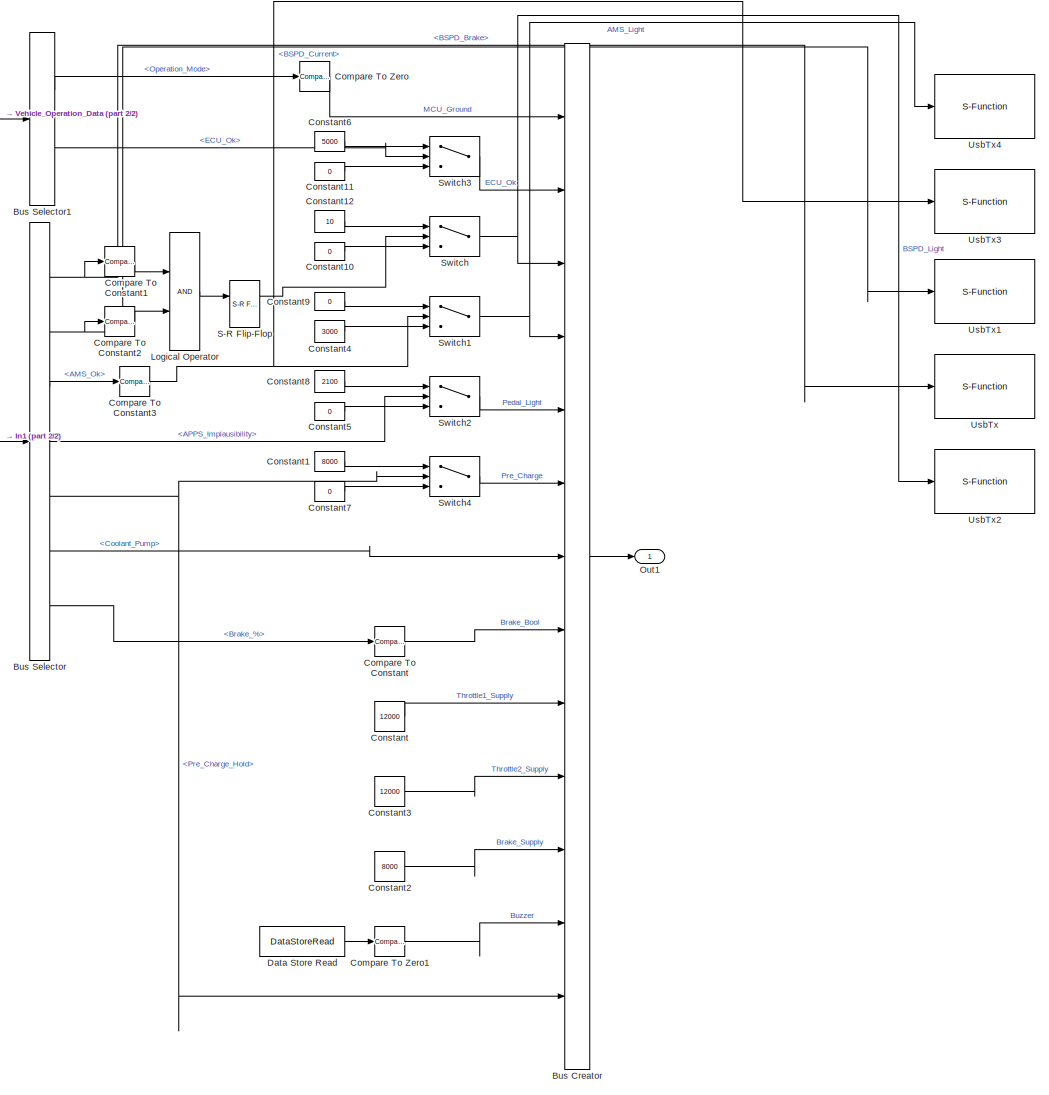
[diagram: Data_Processing/Vehicle_Functionality/Hardwired_Output_Functions - part 1/2, most of the canvas]
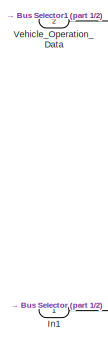
[diagram: Data_Processing/Vehicle_Functionality/Hardwired_Output_Functions - part 2/2, top left region]
BLOCK [SubSystem] Data_Processing/Vehicle_Functionality/Hardwired_Output_Functions
  Ports = [2, 1]
  RequestExecContextInheritance = off
  Variant = off
BLOCK [BusCreator] Data_Processing/Vehicle_Functionality/Hardwired_Output_Functions/Bus Creator
  DisplayOption = bar
  InheritFromInputs = on
  Inputs = 13
  Ports = [13, 1]
BLOCK [BusSelector] Data_Processing/Vehicle_Functionality/Hardwired_Output_Functions/Bus Selector
  OutputSignals = Raw_Input_Data.Hardwired_Inputs.Pedal_Box_Data.BSPD_Brake,Raw_Input_Data.Hardwired_Inputs.Pedal_Box_Data.BSPD_Current,Raw_Input_Data.Hardwired_Inputs.AMS_Ok,ECU_IO_Data.Pedal_Box_Data.APPS_Implausibility,BMS_Data.Pre_Charge_Hold,MCU_Data.Coolant_Pump,ECU_IO_Data.Pedal_Box_Data.Brake_%
  Ports = [1, 7]
BLOCK [BusSelector] Data_Processing/Vehicle_Functionality/Hardwired_Output_Functions/Bus Selector1
  OutputSignals = Operation_Mode,ECU_Ok
  Ports = [1, 2]
BLOCK [Reference] Data_Processing/Vehicle_Functionality/Hardwired_Output_Functions/Compare To Constant  REF=simulink/Logic and Bit
Operations/Compare
To Constant
  Ports = [1, 1]
  SourceBlock = simulink/Logic and Bit\nOperations/Compare\nTo Constant
  SourceType = Compare To Constant
BLOCK [Reference] Data_Processing/Vehicle_Functionality/Hardwired_Output_Functions/Compare To Constant1  REF=simulink/Logic and Bit
Operations/Compare
To Constant
  Ports = [1, 1]
  SourceBlock = simulink/Logic and Bit\nOperations/Compare\nTo Constant
  SourceType = Compare To Constant
BLOCK [Reference] Data_Processing/Vehicle_Functionality/Hardwired_Output_Functions/Compare To Constant2  REF=simulink/Logic and Bit
Operations/Compare
To Constant
  Ports = [1, 1]
  SourceBlock = simulink/Logic and Bit\nOperations/Compare\nTo Constant
  SourceType = Compare To Constant
BLOCK [Reference] Data_Processing/Vehicle_Functionality/Hardwired_Output_Functions/Compare To Constant3  REF=simulink/Logic and Bit
Operations/Compare
To Constant
  Ports = [1, 1]
  SourceBlock = simulink/Logic and Bit\nOperations/Compare\nTo Constant
  SourceType = Compare To Constant
BLOCK [Reference] Data_Processing/Vehicle_Functionality/Hardwired_Output_Functions/Compare To Zero  REF=simulink/Logic and Bit
Operations/Compare
To Zero
  Ports = [1, 1]
  SourceBlock = simulink/Logic and Bit\nOperations/Compare\nTo Zero
  SourceType = Compare To Zero
BLOCK [Reference] Data_Processing/Vehicle_Functionality/Hardwired_Output_Functions/Compare To Zero1  REF=simulink/Logic and Bit
Operations/Compare
To Zero
  Ports = [1, 1]
  SourceBlock = simulink/Logic and Bit\nOperations/Compare\nTo Zero
  SourceType = Compare To Zero
BLOCK [Constant] Data_Processing/Vehicle_Functionality/Hardwired_Output_Functions/Constant
  OutDataTypeStr = uint16
  Value = 12000
BLOCK [Constant] Data_Processing/Vehicle_Functionality/Hardwired_Output_Functions/Constant1
  OutDataTypeStr = Inherit: Inherit via back propagation
  Value = 8000
BLOCK [Constant] Data_Processing/Vehicle_Functionality/Hardwired_Output_Functions/Constant10
  OutDataTypeStr = uint16
  Value = 0
BLOCK [Constant] Data_Processing/Vehicle_Functionality/Hardwired_Output_Functions/Constant11
  OutDataTypeStr = uint16
  Value = 0
BLOCK [Constant] Data_Processing/Vehicle_Functionality/Hardwired_Output_Functions/Constant12
  OutDataTypeStr = uint16
  Value = 10
BLOCK [Constant] Data_Processing/Vehicle_Functionality/Hardwired_Output_Functions/Constant2
  OutDataTypeStr = uint16
  Value = 8000
BLOCK [Constant] Data_Processing/Vehicle_Functionality/Hardwired_Output_Functions/Constant3
  OutDataTypeStr = uint16
  Value = 12000
BLOCK [Constant] Data_Processing/Vehicle_Functionality/Hardwired_Output_Functions/Constant4
  OutDataTypeStr = uint16
  Value = 3000
BLOCK [Constant] Data_Processing/Vehicle_Functionality/Hardwired_Output_Functions/Constant5
  OutDataTypeStr = uint16
  Value = 0
BLOCK [Constant] Data_Processing/Vehicle_Functionality/Hardwired_Output_Functions/Constant6
  OutDataTypeStr = uint16
  Value = 5000
BLOCK [Constant] Data_Processing/Vehicle_Functionality/Hardwired_Output_Functions/Constant7
  OutDataTypeStr = Inherit: Inherit via back propagation
  Value = 0
BLOCK [Constant] Data_Processing/Vehicle_Functionality/Hardwired_Output_Functions/Constant8
  OutDataTypeStr = uint16
  Value = 2100
BLOCK [Constant] Data_Processing/Vehicle_Functionality/Hardwired_Output_Functions/Constant9
  OutDataTypeStr = uint16
  Value = 0
BLOCK [DataStoreRead] Data_Processing/Vehicle_Functionality/Hardwired_Output_Functions/Data Store Read
  DataStoreName = Buzzer_Timer
  Ports = [0, 1]
BLOCK [Inport] Data_Processing/Vehicle_Functionality/Hardwired_Output_Functions/In1
  IconDisplay = Port number
BLOCK [Logic] Data_Processing/Vehicle_Functionality/Hardwired_Output_Functions/Logical Operator
  AllPortsSameDT = off
  OutDataTypeStr = boolean
  Ports = [2, 1]
BLOCK [Outport] Data_Processing/Vehicle_Functionality/Hardwired_Output_Functions/Out1
  IconDisplay = Port number
BLOCK [Reference] Data_Processing/Vehicle_Functionality/Hardwired_Output_Functions/S-R Flip-Flop  REF=simulink_extras/Flip Flops/S-R
Flip-Flop
  Ports = [2, 2]
  SourceBlock = simulink_extras/Flip Flops/S-R\nFlip-Flop
  SourceType = SRFlipFlop
BLOCK [Switch] Data_Processing/Vehicle_Functionality/Hardwired_Output_Functions/Switch
  Criteria = u2 > Threshold
  InputSameDT = off
  OutDataTypeStr = uint8
  SaturateOnIntegerOverflow = off
BLOCK [Switch] Data_Processing/Vehicle_Functionality/Hardwired_Output_Functions/Switch1
  Criteria = u2 > Threshold
  InputSameDT = off
  OutDataTypeStr = uint8
  SaturateOnIntegerOverflow = off
BLOCK [Switch] Data_Processing/Vehicle_Functionality/Hardwired_Output_Functions/Switch2
  Criteria = u2 > Threshold
  InputSameDT = off
  SaturateOnIntegerOverflow = off
BLOCK [Switch] Data_Processing/Vehicle_Functionality/Hardwired_Output_Functions/Switch3
  Criteria = u2 > Threshold
  InputSameDT = off
  SaturateOnIntegerOverflow = off
BLOCK [Switch] Data_Processing/Vehicle_Functionality/Hardwired_Output_Functions/Switch4
  Criteria = u2 > Threshold
  InputSameDT = off
  OutDataTypeStr = uint16
  SaturateOnIntegerOverflow = off
BLOCK [S-Function] Data_Processing/Vehicle_Functionality/Hardwired_Output_Functions/UsbTx
  EnableBusSupport = off
  FunctionName = NsiUsb_Tx
  OpenFcn = NsiUsb_Tx_OpenFcn();
  Parameters = signame,resolution,offset,unite
  Ports = [1]
  SFunctionDeploymentMode = off
BLOCK [S-Function] Data_Processing/Vehicle_Functionality/Hardwired_Output_Functions/UsbTx1
  EnableBusSupport = off
  FunctionName = NsiUsb_Tx
  OpenFcn = NsiUsb_Tx_OpenFcn();
  Parameters = signame,resolution,offset,unite
  Ports = [1]
  SFunctionDeploymentMode = off
BLOCK [S-Function] Data_Processing/Vehicle_Functionality/Hardwired_Output_Functions/UsbTx2
  EnableBusSupport = off
  FunctionName = NsiUsb_Tx
  OpenFcn = NsiUsb_Tx_OpenFcn();
  Parameters = signame,resolution,offset,unite
  Ports = [1]
  SFunctionDeploymentMode = off
BLOCK [S-Function] Data_Processing/Vehicle_Functionality/Hardwired_Output_Functions/UsbTx3
  EnableBusSupport = off
  FunctionName = NsiUsb_Tx
  OpenFcn = NsiUsb_Tx_OpenFcn();
  Parameters = signame,resolution,offset,unite
  Ports = [1]
  SFunctionDeploymentMode = off
BLOCK [S-Function] Data_Processing/Vehicle_Functionality/Hardwired_Output_Functions/UsbTx4
  EnableBusSupport = off
  FunctionName = NsiUsb_Tx
  OpenFcn = NsiUsb_Tx_OpenFcn();
  Parameters = signame,resolution,offset,unite
  Ports = [1]
  SFunctionDeploymentMode = off
BLOCK [Inport] Data_Processing/Vehicle_Functionality/Hardwired_Output_Functions/Vehicle_Operation_Data
  IconDisplay = Port number
  Port = 2
BLOCK [Inport] Data_Processing/Vehicle_Functionality/Input_Data
  IconDisplay = Port number
BLOCK [Outport] Data_Processing/Vehicle_Functionality/Output_Data_Bus
  IconDisplay = Port number
BLOCK [SubSystem] Data_Processing/Vehicle_Functionality/Vehicle_Operation_Mode
  Ports = [1, 1]
  RequestExecContextInheritance = off
  Variant = off
BLOCK [BusCreator] Data_Processing/Vehicle_Functionality/Vehicle_Operation_Mode/Bus Creator
  DisplayOption = bar
  InheritFromInputs = on
  Inputs = 7
  Ports = [7, 1]
BLOCK [BusSelector] Data_Processing/Vehicle_Functionality/Vehicle_Operation_Mode/Bus Selector1
  OutputSignals = ECU_IO_Data.Pedal_Box_Data.Throttle_%,ECU_IO_Data.Pedal_Box_Data.Brake_%,Raw_Input_Data.Hardwired_Inputs.Console_Data.Reset,Raw_Input_Data.Hardwired_Inputs.Console_Data.Push_to_Start
  Ports = [1, 4]
BLOCK [Reference] Data_Processing/Vehicle_Functionality/Vehicle_Operation_Mode/Compare To Constant  REF=simulink/Logic and Bit
Operations/Compare
To Constant
  Ports = [1, 1]
  SourceBlock = simulink/Logic and Bit\nOperations/Compare\nTo Constant
  SourceType = Compare To Constant
BLOCK [Reference] Data_Processing/Vehicle_Functionality/Vehicle_Operation_Mode/Compare To Constant1  REF=simulink/Logic and Bit
Operations/Compare
To Constant
  Ports = [1, 1]
  SourceBlock = simulink/Logic and Bit\nOperations/Compare\nTo Constant
  SourceType = Compare To Constant
BLOCK [Reference] Data_Processing/Vehicle_Functionality/Vehicle_Operation_Mode/Compare To Constant2  REF=simulink/Logic and Bit
Operations/Compare
To Constant
  Ports = [1, 1]
  SourceBlock = simulink/Logic and Bit\nOperations/Compare\nTo Constant
  SourceType = Compare To Constant
BLOCK [DataStoreRead] Data_Processing/Vehicle_Functionality/Vehicle_Operation_Mode/Data Store Read
  DataStoreName = O_M
  Ports = [0, 1]
BLOCK [DataStoreRead] Data_Processing/Vehicle_Functionality/Vehicle_Operation_Mode/Data Store Read1
  DataStoreName = Buzzer_Timer
  Ports = [0, 1]
BLOCK [DataStoreWrite] Data_Processing/Vehicle_Functionality/Vehicle_Operation_Mode/Data Store Write
  DataStoreName = O_M
  Ports = [1]
BLOCK [DataStoreWrite] Data_Processing/Vehicle_Functionality/Vehicle_Operation_Mode/Data Store Write1
  DataStoreName = Buzzer_Timer
  Ports = [1]
BLOCK [Outport] Data_Processing/Vehicle_Functionality/Vehicle_Operation_Mode/Data_Out
  IconDisplay = Port number
BLOCK [Inport] Data_Processing/Vehicle_Functionality/Vehicle_Operation_Mode/Diagnostic_Data
  IconDisplay = Port number
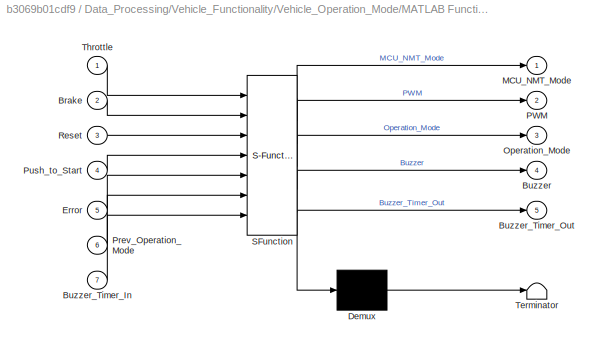
BLOCK [SubSystem] Data_Processing/Vehicle_Functionality/Vehicle_Operation_Mode/MATLAB Function
  ErrorFcn = Stateflow.Translate.translate
  PermitHierarchicalResolution = ExplicitOnly
  Ports = [7, 5]
  RequestExecContextInheritance = off
  SFBlockType = MATLAB Function
  TreatAsAtomicUnit = on
  Variant = off
BLOCK [Demux] Data_Processing/Vehicle_Functionality/Vehicle_Operation_Mode/MATLAB Function/ Demux 
  Outputs = 1
  Ports = [1, 1]
BLOCK [S-Function] Data_Processing/Vehicle_Functionality/Vehicle_Operation_Mode/MATLAB Function/ SFunction 
  EnableBusSupport = on
  FunctionName = sf_sfun
  PortCounts = [7 6]
  Ports = [7, 6]
  SFunctionDeploymentMode = off
  Tag = Stateflow S-Function TBRe18_ECU_V6 2
BLOCK [Terminator] Data_Processing/Vehicle_Functionality/Vehicle_Operation_Mode/MATLAB Function/ Terminator 
BLOCK [Inport] Data_Processing/Vehicle_Functionality/Vehicle_Operation_Mode/MATLAB Function/Brake
  IconDisplay = Port number
  Port = 2
BLOCK [Outport] Data_Processing/Vehicle_Functionality/Vehicle_Operation_Mode/MATLAB Function/Buzzer
  IconDisplay = Port number
  Port = 4
BLOCK [Inport] Data_Processing/Vehicle_Functionality/Vehicle_Operation_Mode/MATLAB Function/Buzzer_Timer_In
  IconDisplay = Port number
  Port = 7
BLOCK [Outport] Data_Processing/Vehicle_Functionality/Vehicle_Operation_Mode/MATLAB Function/Buzzer_Timer_Out
  IconDisplay = Port number
  Port = 5
BLOCK [Inport] Data_Processing/Vehicle_Functionality/Vehicle_Operation_Mode/MATLAB Function/Error
  IconDisplay = Port number
  Port = 5
BLOCK [Outport] Data_Processing/Vehicle_Functionality/Vehicle_Operation_Mode/MATLAB Function/MCU_NMT_Mode
  IconDisplay = Port number
BLOCK [Outport] Data_Processing/Vehicle_Functionality/Vehicle_Operation_Mode/MATLAB Function/Operation_Mode
  IconDisplay = Port number
  Port = 3
BLOCK [Outport] Data_Processing/Vehicle_Functionality/Vehicle_Operation_Mode/MATLAB Function/PWM
  IconDisplay = Port number
  Port = 2
BLOCK [Inport] Data_Processing/Vehicle_Functionality/Vehicle_Operation_Mode/MATLAB Function/Prev_Operation_Mode
  IconDisplay = Port number
  Port = 6
BLOCK [Inport] Data_Processing/Vehicle_Functionality/Vehicle_Operation_Mode/MATLAB Function/Push_to_Start
  IconDisplay = Port number
  Port = 4
BLOCK [Inport] Data_Processing/Vehicle_Functionality/Vehicle_Operation_Mode/MATLAB Function/Reset
  IconDisplay = Port number
  Port = 3
BLOCK [Inport] Data_Processing/Vehicle_Functionality/Vehicle_Operation_Mode/MATLAB Function/Throttle
  IconDisplay = Port number
BLOCK [SubSystem] Data_Processing/Vehicle_Functionality/Vehicle_Operation_Mode/System_Error
  Ports = [1, 1]
  RequestExecContextInheritance = off
  Variant = off
BLOCK [BusSelector] Data_Processing/Vehicle_Functionality/Vehicle_Operation_Mode/System_Error/Bus Selector1
  OutputSignals = Shutdown_Data.Shutdown_Error,ECU_IO_Data.Pedal_Box_Data.APPS_BP_Implausibility,ECU_IO_Data.Pedal_Box_Data.APPS_Implausibility
  Ports = [1, 3]
BLOCK [Inport] Data_Processing/Vehicle_Functionality/Vehicle_Operation_Mode/System_Error/In
  IconDisplay = Port number
BLOCK [Logic] Data_Processing/Vehicle_Functionality/Vehicle_Operation_Mode/System_Error/Logical Operator
  AllPortsSameDT = off
  Inputs = 4
  Operator = OR
  OutDataTypeStr = boolean
  Ports = [4, 1]
BLOCK [Outport] Data_Processing/Vehicle_Functionality/Vehicle_Operation_Mode/System_Error/Out
  IconDisplay = Port number
BLOCK [S-Function] Data_Processing/Vehicle_Functionality/Vehicle_Operation_Mode/UsbTx
  EnableBusSupport = off
  FunctionName = NsiUsb_Tx
  OpenFcn = NsiUsb_Tx_OpenFcn();
  Parameters = signame,resolution,offset,unite
  Ports = [1]
  SFunctionDeploymentMode = off
BLOCK [S-Function] Data_Processing/Vehicle_Functionality/Vehicle_Operation_Mode/UsbTx1
  EnableBusSupport = off
  FunctionName = NsiUsb_Tx
  OpenFcn = NsiUsb_Tx_OpenFcn();
  Parameters = signame,resolution,offset,unite
  Ports = [1]
  SFunctionDeploymentMode = off
BLOCK [SubSystem] Hardwired_Inputs
  OpenFcn = NsiSys_SubSystemTask_OpenFcn();
  Ports = [0, 1]
  RTWFcnName = Hardwired_Inputs
  RTWFcnNameOpts = User specified
  RTWFileName = FileTaskFcn
  RTWFileNameOpts = Use function name
  RTWSystemCode = Nonreusable function
  RequestExecContextInheritance = off
  SystemSampleTime = [0.1]
  TreatAsAtomicUnit = on
  Variant = off
BLOCK [S-Function] Hardwired_Inputs/AnalogInput
  EnableBusSupport = off
  FunctionName = NsiIo_AnalogInput
  OpenFcn = NsiIo_AnalogInput_OpenFcn();
  Parameters = channel
  Ports = [0, 1]
  SFunctionDeploymentMode = off
BLOCK [S-Function] Hardwired_Inputs/AnalogInput1
  EnableBusSupport = off
  FunctionName = NsiIo_AnalogInput
  OpenFcn = NsiIo_AnalogInput_OpenFcn();
  Parameters = channel
  Ports = [0, 1]
  SFunctionDeploymentMode = off
BLOCK [BusCreator] Hardwired_Inputs/Bus Creator
  DisplayOption = bar
  InheritFromInputs = on
  Inputs = 7
  Ports = [7, 1]
BLOCK [SubSystem] Hardwired_Inputs/Console
  Ports = [0, 1]
  RequestExecContextInheritance = off
  Variant = off
BLOCK [BusCreator] Hardwired_Inputs/Console/Bus Creator
  DisplayOption = bar
  InheritFromInputs = on
  Inputs = 2
  Ports = [2, 1]
BLOCK [S-Function] Hardwired_Inputs/Console/DigitalInput
  EnableBusSupport = off
  FunctionName = NsiIo_DigitalInput
  OpenFcn = NsiIo_DigitalInput_OpenFcn();
  Parameters = channel,is_trigger,typeof_trigger,is_wakeup,wakeup_level
  Ports = [0, 1]
  SFunctionDeploymentMode = off
BLOCK [S-Function] Hardwired_Inputs/Console/DigitalInput1
  EnableBusSupport = off
  FunctionName = NsiIo_DigitalInput
  OpenFcn = NsiIo_DigitalInput_OpenFcn();
  Parameters = channel,is_trigger,typeof_trigger,is_wakeup,wakeup_level
  Ports = [0, 1]
  SFunctionDeploymentMode = off
BLOCK [Outport] Hardwired_Inputs/Console/Out1
  IconDisplay = Port number
BLOCK [S-Function] Hardwired_Inputs/DigitalInput
  EnableBusSupport = off
  FunctionName = NsiIo_DigitalInput
  OpenFcn = NsiIo_DigitalInput_OpenFcn();
  Parameters = channel,is_trigger,typeof_trigger,is_wakeup,wakeup_level
  Ports = [0, 1]
  SFunctionDeploymentMode = off
BLOCK [S-Function] Hardwired_Inputs/FrequentialInput
  EnableBusSupport = off
  FunctionName = NsiIo_FrequencyInput
  OpenFcn = NsiIo_FrequencyInput_OpenFcn();
  Parameters = channel,max_freq,is_digital_input
  Ports = [0, 1]
  SFunctionDeploymentMode = off
BLOCK [SubSystem] Hardwired_Inputs/Init
  CopyFcn = cccopyfcn(gcb)
  OpenFcn = ccopenfcn('System Initialize Function')
  Ports = []
  RequestExecContextInheritance = off
  Variant = off
BLOCK [Outport] Hardwired_Inputs/Out1
  IconDisplay = Port number
BLOCK [SubSystem] Hardwired_Inputs/Pedal_Box
  Ports = [0, 1]
  RequestExecContextInheritance = off
  Variant = off
BLOCK [S-Function] Hardwired_Inputs/Pedal_Box/AnalogInput
  EnableBusSupport = off
  FunctionName = NsiIo_AnalogInput
  OpenFcn = NsiIo_AnalogInput_OpenFcn();
  Parameters = channel
  Ports = [0, 1]
  SFunctionDeploymentMode = off
BLOCK [S-Function] Hardwired_Inputs/Pedal_Box/AnalogInput1
  EnableBusSupport = off
  FunctionName = NsiIo_AnalogInput
  OpenFcn = NsiIo_AnalogInput_OpenFcn();
  Parameters = channel
  Ports = [0, 1]
  SFunctionDeploymentMode = off
BLOCK [S-Function] Hardwired_Inputs/Pedal_Box/AnalogInput2
  EnableBusSupport = off
  FunctionName = NsiIo_AnalogInput
  OpenFcn = NsiIo_AnalogInput_OpenFcn();
  Parameters = channel
  Ports = [0, 1]
  SFunctionDeploymentMode = off
BLOCK [S-Function] Hardwired_Inputs/Pedal_Box/AnalogInput3
  EnableBusSupport = off
  FunctionName = NsiIo_AnalogInput
  OpenFcn = NsiIo_AnalogInput_OpenFcn();
  Parameters = channel
  Ports = [0, 1]
  SFunctionDeploymentMode = off
BLOCK [S-Function] Hardwired_Inputs/Pedal_Box/AnalogInput4
  EnableBusSupport = off
  FunctionName = NsiIo_AnalogInput
  OpenFcn = NsiIo_AnalogInput_OpenFcn();
  Parameters = channel
  Ports = [0, 1]
  SFunctionDeploymentMode = off
BLOCK [BusCreator] Hardwired_Inputs/Pedal_Box/Bus Creator
  DisplayOption = bar
  InheritFromInputs = on
  Inputs = 5
  Ports = [5, 1]
BLOCK [Outport] Hardwired_Inputs/Pedal_Box/Out1
  IconDisplay = Port number
BLOCK [S-Function] Hardwired_Inputs/Pedal_Box/UsbTx
  EnableBusSupport = off
  FunctionName = NsiUsb_Tx
  OpenFcn = NsiUsb_Tx_OpenFcn();
  Parameters = signame,resolution,offset,unite
  Ports = [1]
  SFunctionDeploymentMode = off
BLOCK [S-Function] Hardwired_Inputs/Pedal_Box/UsbTx1
  EnableBusSupport = off
  FunctionName = NsiUsb_Tx
  OpenFcn = NsiUsb_Tx_OpenFcn();
  Parameters = signame,resolution,offset,unite
  Ports = [1]
  SFunctionDeploymentMode = off
BLOCK [S-Function] Hardwired_Inputs/Pedal_Box/UsbTx2
  EnableBusSupport = off
  FunctionName = NsiUsb_Tx
  OpenFcn = NsiUsb_Tx_OpenFcn();
  Parameters = signame,resolution,offset,unite
  Ports = [1]
  SFunctionDeploymentMode = off
BLOCK [S-Function] Hardwired_Inputs/Task
  EnableBusSupport = off
  FunctionName = NsiSys_TaskREF
  OpenFcn = NsiSys_Task_OpenFcn();
  Parameters = task_initialised,task_periodic, task_sampletime,task_name,task_event,task_offset
  Ports = []
  SFunctionDeploymentMode = off
BLOCK [S-Function] Hardwired_Inputs/VBat
  EnableBusSupport = off
  FunctionName = NsiIo_Vbat
  OpenFcn = NsiIo_Vbat_OpenFcn();
  Ports = [0, 1]
  SFunctionDeploymentMode = off
BLOCK [SubSystem] Hardwired_Outputs
  OpenFcn = NsiSys_SubSystemTask_OpenFcn();
  Ports = [1]
  RTWFcnName = Hardwired_Outputs
  RTWFcnNameOpts = User specified
  RTWFileName = FileTaskFcn
  RTWFileNameOpts = Use function name
  RTWSystemCode = Nonreusable function
  RequestExecContextInheritance = off
  SystemSampleTime = [0.1]
  TreatAsAtomicUnit = on
  Variant = off
BLOCK [S-Function] Hardwired_Outputs/AnalogOutput1
  EnableBusSupport = off
  FunctionName = NsiIo_AnalogOutput
  OpenFcn = NsiIo_AnalogOutput_OpenFcn();
  Parameters = Channel,Feedback
  Ports = [1]
  SFunctionDeploymentMode = off
BLOCK [S-Function] Hardwired_Outputs/AnalogOutput2
  EnableBusSupport = off
  FunctionName = NsiIo_AnalogOutput
  OpenFcn = NsiIo_AnalogOutput_OpenFcn();
  Parameters = Channel,Feedback
  Ports = [1]
  SFunctionDeploymentMode = off
BLOCK [S-Function] Hardwired_Outputs/AnalogOutput4
  EnableBusSupport = off
  FunctionName = NsiIo_AnalogOutput
  OpenFcn = NsiIo_AnalogOutput_OpenFcn();
  Parameters = Channel,Feedback
  Ports = [1]
  SFunctionDeploymentMode = off
BLOCK [S-Function] Hardwired_Outputs/AnalogOutput6
  EnableBusSupport = off
  FunctionName = NsiIo_AnalogOutput
  OpenFcn = NsiIo_AnalogOutput_OpenFcn();
  Parameters = Channel,Feedback
  Ports = [1]
  SFunctionDeploymentMode = off
BLOCK [S-Function] Hardwired_Outputs/AnalogOutput7
  EnableBusSupport = off
  FunctionName = NsiIo_AnalogOutput
  OpenFcn = NsiIo_AnalogOutput_OpenFcn();
  Parameters = Channel,Feedback
  Ports = [1]
  SFunctionDeploymentMode = off
BLOCK [S-Function] Hardwired_Outputs/AnalogOutput8
  EnableBusSupport = off
  FunctionName = NsiIo_AnalogOutput
  OpenFcn = NsiIo_AnalogOutput_OpenFcn();
  Parameters = Channel,Feedback
  Ports = [1]
  SFunctionDeploymentMode = off
BLOCK [BusSelector] Hardwired_Outputs/Bus Selector
  OutputSignals = Hardwired_Output_Data.Throttle1_Supply,Hardwired_Output_Data.Throttle2_Supply,Hardwired_Output_Data.Pedal_Light,Hardwired_Output_Data.Brake_Supply,Vehicle_Operation_Data.Buzzer,Hardwired_Output_Data.MCU_Ground,Hardwired_Output_Data.Coolant_Pump,Hardwired_Output_Data.Brake_Bool,Hardwired_Output_Data.Pre_Charge,Hardwired_Output_Data.AMS_Light,Hardwired_Output_Data.ECU_Ok,Hardwired_Output_Data.BSPD_L...<+4ch>
  Ports = [1, 12]
BLOCK [Constant] Hardwired_Outputs/Constant
  OutDataTypeStr = uint32
  Value = 10000
BLOCK [Constant] Hardwired_Outputs/Constant1
  OutDataTypeStr = uint32
  Value = 10000
BLOCK [S-Function] Hardwired_Outputs/DigitalOutput
  EnableBusSupport = off
  FunctionName = NsiIo_DigitalOutput
  OpenFcn = NsiIo_DigitalOutput_OpenFcn();
  Parameters = channel,side,feedback
  Ports = [1]
  SFunctionDeploymentMode = off
BLOCK [S-Function] Hardwired_Outputs/DigitalOutput1
  EnableBusSupport = off
  FunctionName = NsiIo_DigitalOutput
  OpenFcn = NsiIo_DigitalOutput_OpenFcn();
  Parameters = channel,side,feedback
  Ports = [1]
  SFunctionDeploymentMode = off
BLOCK [S-Function] Hardwired_Outputs/DigitalOutput2
  EnableBusSupport = off
  FunctionName = NsiIo_DigitalOutput
  OpenFcn = NsiIo_DigitalOutput_OpenFcn();
  Parameters = channel,side,feedback
  Ports = [1]
  SFunctionDeploymentMode = off
BLOCK [S-Function] Hardwired_Outputs/DigitalOutput3
  EnableBusSupport = off
  FunctionName = NsiIo_DigitalOutput
  OpenFcn = NsiIo_DigitalOutput_OpenFcn();
  Parameters = channel,side,feedback
  Ports = [1]
  SFunctionDeploymentMode = off
BLOCK [Inport] Hardwired_Outputs/In1
  IconDisplay = Port number
BLOCK [SubSystem] Hardwired_Outputs/Init
  CopyFcn = cccopyfcn(gcb)
  OpenFcn = ccopenfcn('System Initialize Function')
  Ports = []
  RequestExecContextInheritance = off
  Variant = off
BLOCK [S-Function] Hardwired_Outputs/Pwm
  EnableBusSupport = off
  FunctionName = NsiIo_Pwm
  OpenFcn = NsiIo_Pwm_OpenFcn();
  Parameters = channel
  Ports = [2]
  SFunctionDeploymentMode = off
BLOCK [S-Function] Hardwired_Outputs/Pwm1
  EnableBusSupport = off
  FunctionName = NsiIo_Pwm
  OpenFcn = NsiIo_Pwm_OpenFcn();
  Parameters = channel
  Ports = [2]
  SFunctionDeploymentMode = off
BLOCK [S-Function] Hardwired_Outputs/Task
  EnableBusSupport = off
  FunctionName = NsiSys_TaskREF
  OpenFcn = NsiSys_Task_OpenFcn();
  Parameters = task_initialised,task_periodic, task_sampletime,task_name,task_event,task_offset
  Ports = []
  SFunctionDeploymentMode = off
BLOCK [S-Function] Hardwired_Outputs/UsbTx
  EnableBusSupport = off
  FunctionName = NsiUsb_Tx
  OpenFcn = NsiUsb_Tx_OpenFcn();
  Parameters = signame,resolution,offset,unite
  Ports = [1]
  SFunctionDeploymentMode = off
BLOCK [S-Function] Hardwired_Outputs/UsbTx2
  EnableBusSupport = off
  FunctionName = NsiUsb_Tx
  OpenFcn = NsiUsb_Tx_OpenFcn();
  Parameters = signame,resolution,offset,unite
  Ports = [1]
  SFunctionDeploymentMode = off
BLOCK [SubSystem] High_Priority_CAN_RX
  OpenFcn = NsiSys_SubSystemTask_OpenFcn();
  Ports = [0, 1]
  RTWFcnName = High_Priority_CAN_RX
  RTWFcnNameOpts = User specified
  RTWFileName = FileTaskFcn
  RTWFileNameOpts = Use function name
  RTWSystemCode = Nonreusable function
  RequestExecContextInheritance = off
  SystemSampleTime = [0.1]
  TreatAsAtomicUnit = on
  Variant = off
BLOCK [BusCreator] High_Priority_CAN_RX/Bus Creator
  DisplayOption = bar
  InheritFromInputs = on
  Inputs = 8
  Ports = [8, 1]
BLOCK [S-Function] High_Priority_CAN_RX/CanRx
  EnableBusSupport = off
  FunctionName = NsiCan_Rx
  OpenFcn = NsiCan_Rx_OpenFcn();
  Parameters = data_can,channel,msg_name,ident,ident_type,dlc,signals,is_trigger
  Ports = [0, 2]
  SFunctionDeploymentMode = off
BLOCK [S-Function] High_Priority_CAN_RX/CanRx1
  EnableBusSupport = off
  FunctionName = NsiCan_Rx
  OpenFcn = NsiCan_Rx_OpenFcn();
  Parameters = data_can,channel,msg_name,ident,ident_type,dlc,signals,is_trigger
  Ports = [0, 4]
  SFunctionDeploymentMode = off
BLOCK [S-Function] High_Priority_CAN_RX/CanRx2
  EnableBusSupport = off
  FunctionName = NsiCan_Rx
  OpenFcn = NsiCan_Rx_OpenFcn();
  Parameters = data_can,channel,msg_name,ident,ident_type,dlc,signals,is_trigger
  Ports = [0, 5]
  SFunctionDeploymentMode = off
BLOCK [SubSystem] High_Priority_CAN_RX/Init
  CopyFcn = cccopyfcn(gcb)
  OpenFcn = ccopenfcn('System Initialize Function')
  Ports = []
  RequestExecContextInheritance = off
  Variant = off
BLOCK [Outport] High_Priority_CAN_RX/Out1
  IconDisplay = Port number
BLOCK [S-Function] High_Priority_CAN_RX/Task
  EnableBusSupport = off
  FunctionName = NsiSys_TaskREF
  OpenFcn = NsiSys_Task_OpenFcn();
  Parameters = task_initialised,task_periodic, task_sampletime,task_name,task_event,task_offset
  Ports = []
  SFunctionDeploymentMode = off
BLOCK [SubSystem] High_Priority_CAN_TX
  OpenFcn = NsiSys_SubSystemTask_OpenFcn();
  Ports = [1]
  RTWFcnName = High_Priority_CAN_TX
  RTWFcnNameOpts = User specified
  RTWFileName = FileTaskFcn
  RTWFileNameOpts = Use function name
  RTWSystemCode = Nonreusable function
  RequestExecContextInheritance = off
  SystemSampleTime = [0.1]
  TreatAsAtomicUnit = on
  Variant = off
BLOCK [BusSelector] High_Priority_CAN_TX/Bus Selector
  OutputSignals = Drive_Data.Torque_Request,Vehicle_Operation_Data.Operation_Mode,Drive_Data.Control_Word,Drive_Data.Sync_Signal,Vehicle_Operation_Data.MCU_NMT_Mode
  Ports = [1, 5]
BLOCK [S-Function] High_Priority_CAN_TX/CanTx
  EnableBusSupport = off
  FunctionName = NsiCan_Tx
  OpenFcn = NsiCan_Tx_OpenFcn();
  Parameters = data_can,channel,msg_name,ident,ident_type,dlc,signals
  Ports = [1]
  SFunctionDeploymentMode = off
BLOCK [S-Function] High_Priority_CAN_TX/CanTx1
  EnableBusSupport = off
  FunctionName = NsiCan_Tx
  OpenFcn = NsiCan_Tx_OpenFcn();
  Parameters = data_can,channel,msg_name,ident,ident_type,dlc,signals
  Ports = [1]
  SFunctionDeploymentMode = off
BLOCK [Inport] High_Priority_CAN_TX/In1
  IconDisplay = Port number
BLOCK [SubSystem] High_Priority_CAN_TX/Init
  CopyFcn = cccopyfcn(gcb)
  OpenFcn = ccopenfcn('System Initialize Function')
  Ports = []
  RequestExecContextInheritance = off
  Variant = off
BLOCK [SubSystem] High_Priority_CAN_TX/MATLAB Function
  ErrorFcn = Stateflow.Translate.translate
  PermitHierarchicalResolution = ExplicitOnly
  Ports = [1, 4]
  RequestExecContextInheritance = off
  SFBlockType = MATLAB Function
  TreatAsAtomicUnit = on
  Variant = off
BLOCK [Demux] High_Priority_CAN_TX/MATLAB Function/ Demux 
  Outputs = 1
  Ports = [1, 1]
BLOCK [S-Function] High_Priority_CAN_TX/MATLAB Function/ SFunction 
  EnableBusSupport = on
  FunctionName = sf_sfun
  PortCounts = [1 5]
  Ports = [1, 5]
  SFunctionDeploymentMode = off
  Tag = Stateflow S-Function TBRe18_ECU_V6 3
BLOCK [Terminator] High_Priority_CAN_TX/MATLAB Function/ Terminator 
BLOCK [Inport] High_Priority_CAN_TX/MATLAB Function/MCU_NMT_Mode
  IconDisplay = Port number
BLOCK [Outport] High_Priority_CAN_TX/MATLAB Function/Op
  IconDisplay = Port number
  Port = 4
BLOCK [Outport] High_Priority_CAN_TX/MATLAB Function/Pre_Op
  IconDisplay = Port number
  Port = 3
BLOCK [Outport] High_Priority_CAN_TX/MATLAB Function/Reset
  IconDisplay = Port number
  Port = 2
BLOCK [Outport] High_Priority_CAN_TX/MATLAB Function/Stopped
  IconDisplay = Port number
BLOCK [SubSystem] High_Priority_CAN_TX/MATLAB Function2
  Commented = on
  ErrorFcn = Stateflow.Translate.translate
  PermitHierarchicalResolution = ExplicitOnly
  Ports = [2, 4]
  RequestExecContextInheritance = off
  SFBlockType = MATLAB Function
  TreatAsAtomicUnit = on
  Variant = off
BLOCK [Demux] High_Priority_CAN_TX/MATLAB Function2/ Demux 
  Outputs = 1
  Ports = [1, 1]
BLOCK [S-Function] High_Priority_CAN_TX/MATLAB Function2/ SFunction 
  EnableBusSupport = on
  FunctionName = sf_sfun
  PortCounts = [2 5]
  Ports = [2, 5]
  SFunctionDeploymentMode = off
  Tag = Stateflow S-Function TBRe18_ECU_V6 14
BLOCK [Terminator] High_Priority_CAN_TX/MATLAB Function2/ Terminator 
BLOCK [Outport] High_Priority_CAN_TX/MATLAB Function2/OD_Index_Out
  IconDisplay = Port number
  Port = 3
BLOCK [Outport] High_Priority_CAN_TX/MATLAB Function2/OD_Sub_Index_Out
  IconDisplay = Port number
  Port = 2
BLOCK [Inport] High_Priority_CAN_TX/MATLAB Function2/Operational_Mode
  IconDisplay = Port number
  Port = 2
BLOCK [Outport] High_Priority_CAN_TX/MATLAB Function2/SDO_Data_Out
  IconDisplay = Port number
BLOCK [Outport] High_Priority_CAN_TX/MATLAB Function2/SDO_Specifier
  IconDisplay = Port number
  Port = 4
BLOCK [Inport] High_Priority_CAN_TX/MATLAB Function2/Torque_Request
  IconDisplay = Port number
BLOCK [SubSystem] High_Priority_CAN_TX/MCU_Operational
  Ports = [0, 0, 0, 1]
  RequestExecContextInheritance = off
  Variant = off
BLOCK [Constant] High_Priority_CAN_TX/MCU_Operational/0_constant
  OutDataTypeStr = uint8
  SampleTime = -1
  Value = 0
BLOCK [Constant] High_Priority_CAN_TX/MCU_Operational/0_constant1
  OutDataTypeStr = uint8
  SampleTime = -1
BLOCK [S-Function] High_Priority_CAN_TX/MCU_Operational/CanTx
  EnableBusSupport = off
  FunctionName = NsiCan_Tx
  OpenFcn = NsiCan_Tx_OpenFcn();
  Parameters = data_can,channel,msg_name,ident,ident_type,dlc,signals
  Ports = [2]
  SFunctionDeploymentMode = off
BLOCK [TriggerPort] High_Priority_CAN_TX/MCU_Operational/Trigger
  PortDimensions = 1
  Ports = []
  StatesWhenEnabling = held
BLOCK [SubSystem] High_Priority_CAN_TX/MCU_Pre_Operational
  Ports = [0, 0, 0, 1]
  RequestExecContextInheritance = off
  Variant = off
BLOCK [Constant] High_Priority_CAN_TX/MCU_Pre_Operational/0_constant
  OutDataTypeStr = uint8
  SampleTime = -1
  Value = 0
BLOCK [Constant] High_Priority_CAN_TX/MCU_Pre_Operational/0_constant1
  OutDataTypeStr = uint8
  SampleTime = -1
  Value = 128
BLOCK [S-Function] High_Priority_CAN_TX/MCU_Pre_Operational/CanTx
  EnableBusSupport = off
  FunctionName = NsiCan_Tx
  OpenFcn = NsiCan_Tx_OpenFcn();
  Parameters = data_can,channel,msg_name,ident,ident_type,dlc,signals
  Ports = [2]
  SFunctionDeploymentMode = off
BLOCK [TriggerPort] High_Priority_CAN_TX/MCU_Pre_Operational/Trigger
  PortDimensions = 1
  Ports = []
  StatesWhenEnabling = held
BLOCK [SubSystem] High_Priority_CAN_TX/MCU_Reset
  Ports = [0, 0, 0, 1]
  RequestExecContextInheritance = off
  Variant = off
BLOCK [Constant] High_Priority_CAN_TX/MCU_Reset/0_constant
  OutDataTypeStr = uint8
  SampleTime = -1
  Value = 0
BLOCK [Constant] High_Priority_CAN_TX/MCU_Reset/0_constant1
  OutDataTypeStr = uint8
  SampleTime = -1
  Value = 129
BLOCK [S-Function] High_Priority_CAN_TX/MCU_Reset/CanTx
  EnableBusSupport = off
  FunctionName = NsiCan_Tx
  OpenFcn = NsiCan_Tx_OpenFcn();
  Parameters = data_can,channel,msg_name,ident,ident_type,dlc,signals
  Ports = [2]
  SFunctionDeploymentMode = off
BLOCK [TriggerPort] High_Priority_CAN_TX/MCU_Reset/Trigger
  PortDimensions = 1
  Ports = []
  StatesWhenEnabling = held
BLOCK [SubSystem] High_Priority_CAN_TX/MCU_Stopped
  Ports = [0, 0, 0, 1]
  RequestExecContextInheritance = off
  Variant = off
BLOCK [Constant] High_Priority_CAN_TX/MCU_Stopped/0_constant
  OutDataTypeStr = uint8
  SampleTime = -1
  Value = 0
BLOCK [Constant] High_Priority_CAN_TX/MCU_Stopped/0_constant1
  OutDataTypeStr = uint8
  SampleTime = -1
  Value = 2
BLOCK [S-Function] High_Priority_CAN_TX/MCU_Stopped/CanTx
  EnableBusSupport = off
  FunctionName = NsiCan_Tx
  OpenFcn = NsiCan_Tx_OpenFcn();
  Parameters = data_can,channel,msg_name,ident,ident_type,dlc,signals
  Ports = [2]
  SFunctionDeploymentMode = off
BLOCK [TriggerPort] High_Priority_CAN_TX/MCU_Stopped/Trigger
  PortDimensions = 1
  Ports = []
  StatesWhenEnabling = held
BLOCK [SubSystem] High_Priority_CAN_TX/Subsystem
  Ports = [2]
  RequestExecContextInheritance = off
  Variant = off
BLOCK [Constant] High_Priority_CAN_TX/Subsystem/ Sub Index
  OutDataTypeStr = uint8
  Value = 0
BLOCK [S-Function] High_Priority_CAN_TX/Subsystem/CanTx3
  EnableBusSupport = off
  FunctionName = NsiCan_Tx
  OpenFcn = NsiCan_Tx_OpenFcn();
  Parameters = data_can,channel,msg_name,ident,ident_type,dlc,signals
  Ports = [4]
  SFunctionDeploymentMode = off
BLOCK [Reference] High_Priority_CAN_TX/Subsystem/Compare To Constant  REF=simulink/Logic and Bit
Operations/Compare
To Constant
  Ports = [1, 1]
  SourceBlock = simulink/Logic and Bit\nOperations/Compare\nTo Constant
  SourceType = Compare To Constant
BLOCK [Constant] High_Priority_CAN_TX/Subsystem/DC Link Voltage 0x6079
  Value = 24697
BLOCK [Delay] High_Priority_CAN_TX/Subsystem/Delay
  DelayLength = 10
  InitialCondition = 0
  InputPortMap = u0
  Ports = [1, 1]
BLOCK [Inport] High_Priority_CAN_TX/Subsystem/Operation_Mode
  IconDisplay = Port number
  Port = 2
BLOCK [Constant] High_Priority_CAN_TX/Subsystem/Read Data
  Value = 0
BLOCK [Constant] High_Priority_CAN_TX/Subsystem/Read Request
  Value = 64
BLOCK [Switch] High_Priority_CAN_TX/Subsystem/Switch
  Criteria = u2 > Threshold
  InputSameDT = off
  OutDataTypeStr = uint32
  SaturateOnIntegerOverflow = off
BLOCK [Switch] High_Priority_CAN_TX/Subsystem/Switch2
  Criteria = u2 > Threshold
  InputSameDT = off
  OutDataTypeStr = uint16
  SaturateOnIntegerOverflow = off
BLOCK [Switch] High_Priority_CAN_TX/Subsystem/Switch3
  Criteria = u2 > Threshold
  InputSameDT = off
  OutDataTypeStr = uint8
  SaturateOnIntegerOverflow = off
BLOCK [Inport] High_Priority_CAN_TX/Subsystem/Torque
  IconDisplay = Port number
BLOCK [Constant] High_Priority_CAN_TX/Subsystem/Torque 0x6071
  Value = 24689
BLOCK [Constant] High_Priority_CAN_TX/Subsystem/Write Request
  Value = 43
BLOCK [S-Function] High_Priority_CAN_TX/Task
  EnableBusSupport = off
  FunctionName = NsiSys_TaskREF
  OpenFcn = NsiSys_Task_OpenFcn();
  Parameters = task_initialised,task_periodic, task_sampletime,task_name,task_event,task_offset
  Ports = []
  SFunctionDeploymentMode = off
BLOCK [SubSystem] Low_Priority_CAN_RX
  OpenFcn = NsiSys_SubSystemTask_OpenFcn();
  Ports = [0, 1]
  RTWFcnName = Low_Priority_CAN_RX
  RTWFcnNameOpts = User specified
  RTWFileName = FileTaskFcn
  RTWFileNameOpts = Use function name
  RTWSystemCode = Nonreusable function
  RequestExecContextInheritance = off
  SystemSampleTime = [0.1]
  TreatAsAtomicUnit = on
  Variant = off
BLOCK [BusCreator] Low_Priority_CAN_RX/Bus Creator
  DisplayOption = bar
  InheritFromInputs = on
  Inputs = 15
  Ports = [15, 1]
BLOCK [BusCreator] Low_Priority_CAN_RX/Bus Creator1
  DisplayOption = bar
  InheritFromInputs = on
  Inputs = 11
  Ports = [11, 1]
BLOCK [BusCreator] Low_Priority_CAN_RX/Bus Creator2
  DisplayOption = bar
  InheritFromInputs = on
  Inputs = 2
  Ports = [2, 1]
BLOCK [S-Function] Low_Priority_CAN_RX/CanRx
  EnableBusSupport = off
  FunctionName = NsiCan_Rx
  OpenFcn = NsiCan_Rx_OpenFcn();
  Parameters = data_can,channel,msg_name,ident,ident_type,dlc,signals,is_trigger
  Ports = [0, 15]
  SFunctionDeploymentMode = off
BLOCK [S-Function] Low_Priority_CAN_RX/CanRx1
  EnableBusSupport = off
  FunctionName = NsiCan_Rx
  OpenFcn = NsiCan_Rx_OpenFcn();
  Parameters = data_can,channel,msg_name,ident,ident_type,dlc,signals,is_trigger
  Ports = [0, 5]
  SFunctionDeploymentMode = off
BLOCK [S-Function] Low_Priority_CAN_RX/CanRx2
  EnableBusSupport = off
  FunctionName = NsiCan_Rx
  OpenFcn = NsiCan_Rx_OpenFcn();
  Parameters = data_can,channel,msg_name,ident,ident_type,dlc,signals,is_trigger
  Ports = [0, 6]
  SFunctionDeploymentMode = off
BLOCK [SubSystem] Low_Priority_CAN_RX/Init
  CopyFcn = cccopyfcn(gcb)
  OpenFcn = ccopenfcn('System Initialize Function')
  Ports = []
  RequestExecContextInheritance = off
  Variant = off
BLOCK [Outport] Low_Priority_CAN_RX/Out1
  IconDisplay = Port number
BLOCK [S-Function] Low_Priority_CAN_RX/Task
  EnableBusSupport = off
  FunctionName = NsiSys_TaskREF
  OpenFcn = NsiSys_Task_OpenFcn();
  Parameters = task_initialised,task_periodic, task_sampletime,task_name,task_event,task_offset
  Ports = []
  SFunctionDeploymentMode = off
BLOCK [S-Function] Low_Priority_CAN_RX/UsbTx
  EnableBusSupport = off
  FunctionName = NsiUsb_Tx
  OpenFcn = NsiUsb_Tx_OpenFcn();
  Parameters = signame,resolution,offset,unite
  Ports = [1]
  SFunctionDeploymentMode = off
BLOCK [SubSystem] Low_Priority_CAN_TX
  OpenFcn = NsiSys_SubSystemTask_OpenFcn();
  Ports = [1]
  RTWFcnName = Low_Priority_CAN_TX
  RTWFcnNameOpts = User specified
  RTWFileName = FileTaskFcn
  RTWFileNameOpts = Use function name
  RTWSystemCode = Nonreusable function
  RequestExecContextInheritance = off
  SystemSampleTime = [0.1]
  TreatAsAtomicUnit = on
  Variant = off
BLOCK [SubSystem] Low_Priority_CAN_TX/BMS_Diagnostics_Data
  Ports = [1]
  RequestExecContextInheritance = off
  Variant = off
BLOCK [Inport] Low_Priority_CAN_TX/BMS_Diagnostics_Data/In1
  IconDisplay = Port number
BLOCK [SubSystem] Low_Priority_CAN_TX/CSB_Data
  Ports = [1]
  RequestExecContextInheritance = off
  Variant = off
BLOCK [Inport] Low_Priority_CAN_TX/CSB_Data/In1
  IconDisplay = Port number
BLOCK [SubSystem] Low_Priority_CAN_TX/ECU_Data
  Ports = [1]
  RequestExecContextInheritance = off
  Variant = off
BLOCK [BusSelector] Low_Priority_CAN_TX/ECU_Data/Bus Selector
  OutputSignals = Input_Data_Bus.BMS_Data.Pre_Charge_Hold,Vehicle_Operation_Data.Throttle_Bool,Vehicle_Operation_Data.MCU_NMT_Mode,Vehicle_Operation_Data.PWM,Vehicle_Operation_Data.Buzzer,Vehicle_Operation_Data.Operation_Mode,Vehicle_Operation_Data.Brake_Bool
  Ports = [1, 7]
BLOCK [BusSelector] Low_Priority_CAN_TX/ECU_Data/Bus Selector1
  OutputSignals = Input_Data_Bus.ECU_IO_Data.Pedal_Box_Data.Brake_Voltage,Input_Data_Bus.ECU_IO_Data.Pedal_Box_Data.Throttle2_Voltage,Input_Data_Bus.ECU_IO_Data.Pedal_Box_Data.Throttle1_Voltage,Input_Data_Bus.ECU_IO_Data.Pedal_Box_Data.Throttle_%,Input_Data_Bus.ECU_IO_Data.Pedal_Box_Data.APPS_Implausibility,Input_Data_Bus.ECU_IO_Data.Pedal_Box_Data.APPS_BP_Implausibility,Input_Data_Bus.ECU_IO_Data.Pedal_Box_Data.Br...<+495ch>
  Ports = [1, 15]
BLOCK [BusSelector] Low_Priority_CAN_TX/ECU_Data/Bus Selector2
  OutputSignals = Input_Data_Bus.BMS_Data.IMD_Fault,Input_Data_Bus.MCU_Data.MCU_Error,Input_Data_Bus.Raw_Input_Data.LP_CAN_RX.Shutdown_Data.BMS_Fault,Input_Data_Bus.ECU_IO_Data.Pedal_Box_Data.APPS_Implausibility,Input_Data_Bus.ECU_IO_Data.Pedal_Box_Data.APPS_BP_Implausibility,Input_Data_Bus.Shutdown_Data.Shutdown_Error,Input_Data_Bus.ECU_IO_Data.LV_Battery_Data.LV_Battery_Warning
  Ports = [1, 7]
BLOCK [S-Function] Low_Priority_CAN_TX/ECU_Data/CanTx
  EnableBusSupport = off
  FunctionName = NsiCan_Tx
  OpenFcn = NsiCan_Tx_OpenFcn();
  Parameters = data_can,channel,msg_name,ident,ident_type,dlc,signals
  Ports = [7]
  SFunctionDeploymentMode = off
BLOCK [S-Function] Low_Priority_CAN_TX/ECU_Data/CanTx1
  EnableBusSupport = off
  FunctionName = NsiCan_Tx
  OpenFcn = NsiCan_Tx_OpenFcn();
  Parameters = data_can,channel,msg_name,ident,ident_type,dlc,signals
  Ports = [3]
  SFunctionDeploymentMode = off
BLOCK [S-Function] Low_Priority_CAN_TX/ECU_Data/CanTx2
  EnableBusSupport = off
  FunctionName = NsiCan_Tx
  OpenFcn = NsiCan_Tx_OpenFcn();
  Parameters = data_can,channel,msg_name,ident,ident_type,dlc,signals
  Ports = [5]
  SFunctionDeploymentMode = off
BLOCK [S-Function] Low_Priority_CAN_TX/ECU_Data/CanTx3
  EnableBusSupport = off
  FunctionName = NsiCan_Tx
  OpenFcn = NsiCan_Tx_OpenFcn();
  Parameters = data_can,channel,msg_name,ident,ident_type,dlc,signals
  Ports = [7]
  SFunctionDeploymentMode = off
BLOCK [S-Function] Low_Priority_CAN_TX/ECU_Data/CanTx4
  EnableBusSupport = off
  FunctionName = NsiCan_Tx
  OpenFcn = NsiCan_Tx_OpenFcn();
  Parameters = data_can,channel,msg_name,ident,ident_type,dlc,signals
  Ports = [7]
  SFunctionDeploymentMode = off
BLOCK [DataTypeConversion] Low_Priority_CAN_TX/ECU_Data/Data Type Conversion
  OutDataTypeStr = uint8
  RndMeth = Floor
  SaturateOnIntegerOverflow = off
BLOCK [Inport] Low_Priority_CAN_TX/ECU_Data/In1
  IconDisplay = Port number
BLOCK [Inport] Low_Priority_CAN_TX/In1
  IconDisplay = Port number
BLOCK [SubSystem] Low_Priority_CAN_TX/Init
  CopyFcn = cccopyfcn(gcb)
  OpenFcn = ccopenfcn('System Initialize Function')
  Ports = []
  RequestExecContextInheritance = off
  Variant = off
BLOCK [SubSystem] Low_Priority_CAN_TX/MCU_Data
  Ports = [1]
  RequestExecContextInheritance = off
  Variant = off
BLOCK [BusSelector] Low_Priority_CAN_TX/MCU_Data/Bus Selector
  OutputSignals = Input_Data_Bus.MCU_Data.DC_Link_Current,Input_Data_Bus.MCU_Data.DC_Link_Voltage,Input_Data_Bus.MCU_Data.Motor_Temp,Input_Data_Bus.MCU_Data.MCU_Temp
  Ports = [1, 4]
BLOCK [S-Function] Low_Priority_CAN_TX/MCU_Data/CanRx
  EnableBusSupport = off
  FunctionName = NsiCan_Rx
  OpenFcn = NsiCan_Rx_OpenFcn();
  Parameters = data_can,channel,msg_name,ident,ident_type,dlc,signals,is_trigger
  Ports = [0, 3]
  SFunctionDeploymentMode = off
BLOCK [S-Function] Low_Priority_CAN_TX/MCU_Data/CanRx1
  EnableBusSupport = off
  FunctionName = NsiCan_Rx
  OpenFcn = NsiCan_Rx_OpenFcn();
  Parameters = data_can,channel,msg_name,ident,ident_type,dlc,signals,is_trigger
  Ports = [0, 5]
  SFunctionDeploymentMode = off
BLOCK [S-Function] Low_Priority_CAN_TX/MCU_Data/CanTx
  EnableBusSupport = off
  FunctionName = NsiCan_Tx
  OpenFcn = NsiCan_Tx_OpenFcn();
  Parameters = data_can,channel,msg_name,ident,ident_type,dlc,signals
  Ports = [2]
  SFunctionDeploymentMode = off
BLOCK [S-Function] Low_Priority_CAN_TX/MCU_Data/CanTx1
  EnableBusSupport = off
  FunctionName = NsiCan_Tx
  OpenFcn = NsiCan_Tx_OpenFcn();
  Parameters = data_can,channel,msg_name,ident,ident_type,dlc,signals
  Ports = [4]
  SFunctionDeploymentMode = off
BLOCK [S-Function] Low_Priority_CAN_TX/MCU_Data/CanTx2
  EnableBusSupport = off
  FunctionName = NsiCan_Tx
  OpenFcn = NsiCan_Tx_OpenFcn();
  Parameters = data_can,channel,msg_name,ident,ident_type,dlc,signals
  Ports = [4]
  SFunctionDeploymentMode = off
BLOCK [Inport] Low_Priority_CAN_TX/MCU_Data/In1
  IconDisplay = Port number
BLOCK [SubSystem] Low_Priority_CAN_TX/Shutdown_System_Data
  Ports = [1]
  RequestExecContextInheritance = off
  Variant = off
BLOCK [Inport] Low_Priority_CAN_TX/Shutdown_System_Data/In1
  IconDisplay = Port number
BLOCK [S-Function] Low_Priority_CAN_TX/Task
  EnableBusSupport = off
  FunctionName = NsiSys_TaskREF
  OpenFcn = NsiSys_Task_OpenFcn();
  Parameters = task_initialised,task_periodic, task_sampletime,task_name,task_event,task_offset
  Ports = []
  SFunctionDeploymentMode = off
BLOCK [DataStoreMemory] Operation_Mode
  DataStoreName = O_M
  ReadBeforeWriteMsg = warning
  WriteAfterReadMsg = warning
  WriteAfterWriteMsg = warning
ANNOTATION (root): ECU_Code
ANNOTATION (root): ECU_Configuration
ANNOTATION Data_Processing: Data_Processing
ANNOTATION Data_Processing/Diagnostics: Diagnostics
ANNOTATION Data_Processing/Diagnostics/ECU_I//0s_Diagnostics/AIR: AIR open = 0V AIR closed = 5V
ANNOTATION Data_Processing/Diagnostics/ECU_I//0s_Diagnostics/AIR: Need additional info on the AIR
ANNOTATION Data_Processing/Diagnostics/ECU_I//0s_Diagnostics/IMD: Need additional info on the IMD about level of frequency Spec on x Drive:
ANNOTATION Data_Processing/Vehicle_Functionality: Vehicle_Functionality
ANNOTATION Hardwired_Outputs: How do you connect HS outputs?
LINE Bus Creator:1 -> Data_Processing:1
LINE Data_Processing/Diagnostics/BMS_Diagnostics/Bus Creator:1 -> Data_Processing/Diagnostics/BMS_Diagnostics/Out1:1
LINE Data_Processing/Diagnostics/BMS_Diagnostics/Bus Selector:1 -> Data_Processing/Diagnostics/BMS_Diagnostics/MATLAB Function:1
LINE Data_Processing/Diagnostics/BMS_Diagnostics/Bus Selector:2 -> Data_Processing/Diagnostics/BMS_Diagnostics/Switch:1
LINE Data_Processing/Diagnostics/BMS_Diagnostics/Bus Selector:3 -> Data_Processing/Diagnostics/BMS_Diagnostics/Switch:3
LINE Data_Processing/Diagnostics/BMS_Diagnostics/Bus Selector:4 -> Data_Processing/Diagnostics/BMS_Diagnostics/Compare To Zero:1
LINE Data_Processing/Diagnostics/BMS_Diagnostics/Compare To Constant:1 -> Data_Processing/Diagnostics/BMS_Diagnostics/Delay:1
LINE Data_Processing/Diagnostics/BMS_Diagnostics/Compare To Zero:1 -> Data_Processing/Diagnostics/BMS_Diagnostics/Bus Creator:2
LINE Data_Processing/Diagnostics/BMS_Diagnostics/Data Store Read:1 -> Data_Processing/Diagnostics/BMS_Diagnostics/Compare To Constant:1
LINE Data_Processing/Diagnostics/BMS_Diagnostics/Data Type Conversion:1 -> Data_Processing/Diagnostics/BMS_Diagnostics/Bus Creator:1
LINE Data_Processing/Diagnostics/BMS_Diagnostics/Delay:1 -> Data_Processing/Diagnostics/BMS_Diagnostics/Switch:2
LINE Data_Processing/Diagnostics/BMS_Diagnostics/In1:1 -> Data_Processing/Diagnostics/BMS_Diagnostics/Bus Selector:1
LINE Data_Processing/Diagnostics/BMS_Diagnostics/MATLAB Function:1 -> Data_Processing/Diagnostics/BMS_Diagnostics/Data Type Conversion:1
LINE Data_Processing/Diagnostics/BMS_Diagnostics/Switch:1 -> Data_Processing/Diagnostics/BMS_Diagnostics/MATLAB Function:2
LINE Data_Processing/Diagnostics/BMS_Diagnostics:1 -> Data_Processing/Diagnostics/Bus Creator:5
LINE Data_Processing/Diagnostics/Bus Creator:1 -> Data_Processing/Diagnostics/Input_Data_Bus:1
LINE Data_Processing/Diagnostics/ECU_I//0s_Diagnostics/AIR/Bus Creator:1 -> Data_Processing/Diagnostics/ECU_I//0s_Diagnostics/AIR/Out1:1
LINE Data_Processing/Diagnostics/ECU_I//0s_Diagnostics/AIR/Bus Selector:1 -> Data_Processing/Diagnostics/ECU_I//0s_Diagnostics/AIR/Compare To Zero:1
LINE Data_Processing/Diagnostics/ECU_I//0s_Diagnostics/AIR/Compare To Zero:1 -> Data_Processing/Diagnostics/ECU_I//0s_Diagnostics/AIR/Bus Creator:1
LINE Data_Processing/Diagnostics/ECU_I//0s_Diagnostics/AIR/In1:1 -> Data_Processing/Diagnostics/ECU_I//0s_Diagnostics/AIR/Bus Selector:1
LINE Data_Processing/Diagnostics/ECU_I//0s_Diagnostics/AIR:1 -> Data_Processing/Diagnostics/ECU_I//0s_Diagnostics/Bus Creator:4
LINE Data_Processing/Diagnostics/ECU_I//0s_Diagnostics/Bus Creator:1 -> Data_Processing/Diagnostics/ECU_I//0s_Diagnostics/Out1:1
NET Data_Processing/Diagnostics/ECU_I//0s_Diagnostics/Bus Selector:1 -> Data_Processing/Diagnostics/ECU_I//0s_Diagnostics/AIR:1, Data_Processing/Diagnostics/ECU_I//0s_Diagnostics/IMD:1, Data_Processing/Diagnostics/ECU_I//0s_Diagnostics/LV_Battery:1, Data_Processing/Diagnostics/ECU_I//0s_Diagnostics/Pedal_Box:1
LINE Data_Processing/Diagnostics/ECU_I//0s_Diagnostics/IMD/Bus Creator:1 -> Data_Processing/Diagnostics/ECU_I//0s_Diagnostics/IMD/Out1:1
LINE Data_Processing/Diagnostics/ECU_I//0s_Diagnostics/IMD/Bus Selector:1 -> Data_Processing/Diagnostics/ECU_I//0s_Diagnostics/IMD/Compare To Zero:1
LINE Data_Processing/Diagnostics/ECU_I//0s_Diagnostics/IMD/Compare To Zero:1 -> Data_Processing/Diagnostics/ECU_I//0s_Diagnostics/IMD/Bus Creator:1
LINE Data_Processing/Diagnostics/ECU_I//0s_Diagnostics/IMD/In1:1 -> Data_Processing/Diagnostics/ECU_I//0s_Diagnostics/IMD/Bus Selector:1
LINE Data_Processing/Diagnostics/ECU_I//0s_Diagnostics/IMD:1 -> Data_Processing/Diagnostics/ECU_I//0s_Diagnostics/Bus Creator:3
LINE Data_Processing/Diagnostics/ECU_I//0s_Diagnostics/In1:1 -> Data_Processing/Diagnostics/ECU_I//0s_Diagnostics/Bus Selector:1
LINE Data_Processing/Diagnostics/ECU_I//0s_Diagnostics/LV_Battery/Bus Creator:1 -> Data_Processing/Diagnostics/ECU_I//0s_Diagnostics/LV_Battery/Out1:1
NET Data_Processing/Diagnostics/ECU_I//0s_Diagnostics/LV_Battery/Bus Selector:1 -> Data_Processing/Diagnostics/ECU_I//0s_Diagnostics/LV_Battery/Bus Creator:3, Data_Processing/Diagnostics/ECU_I//0s_Diagnostics/LV_Battery/Voltage_SOC :1
LINE Data_Processing/Diagnostics/ECU_I//0s_Diagnostics/LV_Battery/Data Type Conversion:1 -> Data_Processing/Diagnostics/ECU_I//0s_Diagnostics/LV_Battery/Bus Creator:2
LINE Data_Processing/Diagnostics/ECU_I//0s_Diagnostics/LV_Battery/In1:1 -> Data_Processing/Diagnostics/ECU_I//0s_Diagnostics/LV_Battery/Bus Selector:1
LINE Data_Processing/Diagnostics/ECU_I//0s_Diagnostics/LV_Battery/LV_Warning_%:1 -> Data_Processing/Diagnostics/ECU_I//0s_Diagnostics/LV_Battery/Bus Creator:1
NET Data_Processing/Diagnostics/ECU_I//0s_Diagnostics/LV_Battery/Voltage_SOC :1 -> Data_Processing/Diagnostics/ECU_I//0s_Diagnostics/LV_Battery/Data Type Conversion:1, Data_Processing/Diagnostics/ECU_I//0s_Diagnostics/LV_Battery/LV_Warning_%:1
LINE Data_Processing/Diagnostics/ECU_I//0s_Diagnostics/LV_Battery:1 -> Data_Processing/Diagnostics/ECU_I//0s_Diagnostics/Bus Creator:2
LINE Data_Processing/Diagnostics/ECU_I//0s_Diagnostics/Pedal_Box/APPS and BP Plausibility:1 -> Data_Processing/Diagnostics/ECU_I//0s_Diagnostics/Pedal_Box/Bus Creator:9
LINE Data_Processing/Diagnostics/ECU_I//0s_Diagnostics/Pedal_Box/APPS and BP Plausibility:2 -> Data_Processing/Diagnostics/ECU_I//0s_Diagnostics/Pedal_Box/Bus Creator:10
LINE Data_Processing/Diagnostics/ECU_I//0s_Diagnostics/Pedal_Box/APPS and BP Plausibility:3 -> Data_Processing/Diagnostics/ECU_I//0s_Diagnostics/Pedal_Box/Data Store Write:1
LINE Data_Processing/Diagnostics/ECU_I//0s_Diagnostics/Pedal_Box/APPS_Implausibility_Check:1 -> Data_Processing/Diagnostics/ECU_I//0s_Diagnostics/Pedal_Box/Bus Creator:8
LINE Data_Processing/Diagnostics/ECU_I//0s_Diagnostics/Pedal_Box/APPS_Implausibility_Check:2 -> Data_Processing/Diagnostics/ECU_I//0s_Diagnostics/Pedal_Box/APPS and BP Plausibility:1
LINE Data_Processing/Diagnostics/ECU_I//0s_Diagnostics/Pedal_Box/Bus Creator:1 -> Data_Processing/Diagnostics/ECU_I//0s_Diagnostics/Pedal_Box/Out1:1
NET Data_Processing/Diagnostics/ECU_I//0s_Diagnostics/Pedal_Box/Bus Selector:1 -> Data_Processing/Diagnostics/ECU_I//0s_Diagnostics/Pedal_Box/Bus Creator:1, Data_Processing/Diagnostics/ECU_I//0s_Diagnostics/Pedal_Box/Sensor_Diag:1
NET Data_Processing/Diagnostics/ECU_I//0s_Diagnostics/Pedal_Box/Bus Selector:2 -> Data_Processing/Diagnostics/ECU_I//0s_Diagnostics/Pedal_Box/Bus Creator:2, Data_Processing/Diagnostics/ECU_I//0s_Diagnostics/Pedal_Box/Sensor_Diag:2
NET Data_Processing/Diagnostics/ECU_I//0s_Diagnostics/Pedal_Box/Bus Selector:3 -> Data_Processing/Diagnostics/ECU_I//0s_Diagnostics/Pedal_Box/Bus Creator:3, Data_Processing/Diagnostics/ECU_I//0s_Diagnostics/Pedal_Box/Sensor_Diag:3
LINE Data_Processing/Diagnostics/ECU_I//0s_Diagnostics/Pedal_Box/Data Store Read:1 -> Data_Processing/Diagnostics/ECU_I//0s_Diagnostics/Pedal_Box/APPS and BP Plausibility:3
LINE Data_Processing/Diagnostics/ECU_I//0s_Diagnostics/Pedal_Box/In1:1 -> Data_Processing/Diagnostics/ECU_I//0s_Diagnostics/Pedal_Box/Bus Selector:1
NET Data_Processing/Diagnostics/ECU_I//0s_Diagnostics/Pedal_Box/Sensor_Diag:1 -> Data_Processing/Diagnostics/ECU_I//0s_Diagnostics/Pedal_Box/APPS_Implausibility_Check:1, Data_Processing/Diagnostics/ECU_I//0s_Diagnostics/Pedal_Box/Bus Creator:4
LINE Data_Processing/Diagnostics/ECU_I//0s_Diagnostics/Pedal_Box/Sensor_Diag:2 -> Data_Processing/Diagnostics/ECU_I//0s_Diagnostics/Pedal_Box/Voltage_to_% Conversion:1
LINE Data_Processing/Diagnostics/ECU_I//0s_Diagnostics/Pedal_Box/Sensor_Diag:3 -> Data_Processing/Diagnostics/ECU_I//0s_Diagnostics/Pedal_Box/Voltage_to_% Conversion:2
LINE Data_Processing/Diagnostics/ECU_I//0s_Diagnostics/Pedal_Box/Sensor_Diag:4 -> Data_Processing/Diagnostics/ECU_I//0s_Diagnostics/Pedal_Box/Voltage_to_% Conversion:3
LINE Data_Processing/Diagnostics/ECU_I//0s_Diagnostics/Pedal_Box/Voltage_to_% Conversion/Data Type Conversion1:1 -> Data_Processing/Diagnostics/ECU_I//0s_Diagnostics/Pedal_Box/Voltage_to_% Conversion/Out1:1
LINE Data_Processing/Diagnostics/ECU_I//0s_Diagnostics/Pedal_Box/Voltage_to_% Conversion/Data Type Conversion2:1 -> Data_Processing/Diagnostics/ECU_I//0s_Diagnostics/Pedal_Box/Voltage_to_% Conversion/Out2:1
LINE Data_Processing/Diagnostics/ECU_I//0s_Diagnostics/Pedal_Box/Voltage_to_% Conversion/Data Type Conversion:1 -> Data_Processing/Diagnostics/ECU_I//0s_Diagnostics/Pedal_Box/Voltage_to_% Conversion/Out3:1
LINE Data_Processing/Diagnostics/ECU_I//0s_Diagnostics/Pedal_Box/Voltage_to_% Conversion/In1:1 -> Data_Processing/Diagnostics/ECU_I//0s_Diagnostics/Pedal_Box/Voltage_to_% Conversion/Map1:1
LINE Data_Processing/Diagnostics/ECU_I//0s_Diagnostics/Pedal_Box/Voltage_to_% Conversion/In2:1 -> Data_Processing/Diagnostics/ECU_I//0s_Diagnostics/Pedal_Box/Voltage_to_% Conversion/Map2:1
LINE Data_Processing/Diagnostics/ECU_I//0s_Diagnostics/Pedal_Box/Voltage_to_% Conversion/In3:1 -> Data_Processing/Diagnostics/ECU_I//0s_Diagnostics/Pedal_Box/Voltage_to_% Conversion/Map3:1
LINE Data_Processing/Diagnostics/ECU_I//0s_Diagnostics/Pedal_Box/Voltage_to_% Conversion/Map1:1 -> Data_Processing/Diagnostics/ECU_I//0s_Diagnostics/Pedal_Box/Voltage_to_% Conversion/Data Type Conversion1:1
LINE Data_Processing/Diagnostics/ECU_I//0s_Diagnostics/Pedal_Box/Voltage_to_% Conversion/Map2:1 -> Data_Processing/Diagnostics/ECU_I//0s_Diagnostics/Pedal_Box/Voltage_to_% Conversion/Data Type Conversion2:1
LINE Data_Processing/Diagnostics/ECU_I//0s_Diagnostics/Pedal_Box/Voltage_to_% Conversion/Map3:1 -> Data_Processing/Diagnostics/ECU_I//0s_Diagnostics/Pedal_Box/Voltage_to_% Conversion/Data Type Conversion:1
NET Data_Processing/Diagnostics/ECU_I//0s_Diagnostics/Pedal_Box/Voltage_to_% Conversion:1 -> Data_Processing/Diagnostics/ECU_I//0s_Diagnostics/Pedal_Box/APPS_Implausibility_Check:2, Data_Processing/Diagnostics/ECU_I//0s_Diagnostics/Pedal_Box/Bus Creator:5
NET Data_Processing/Diagnostics/ECU_I//0s_Diagnostics/Pedal_Box/Voltage_to_% Conversion:2 -> Data_Processing/Diagnostics/ECU_I//0s_Diagnostics/Pedal_Box/APPS_Implausibility_Check:3, Data_Processing/Diagnostics/ECU_I//0s_Diagnostics/Pedal_Box/Bus Creator:6
NET Data_Processing/Diagnostics/ECU_I//0s_Diagnostics/Pedal_Box/Voltage_to_% Conversion:3 -> Data_Processing/Diagnostics/ECU_I//0s_Diagnostics/Pedal_Box/APPS and BP Plausibility:2, Data_Processing/Diagnostics/ECU_I//0s_Diagnostics/Pedal_Box/Bus Creator:7
LINE Data_Processing/Diagnostics/ECU_I//0s_Diagnostics/Pedal_Box:1 -> Data_Processing/Diagnostics/ECU_I//0s_Diagnostics/Bus Creator:1
LINE Data_Processing/Diagnostics/ECU_I//0s_Diagnostics:1 -> Data_Processing/Diagnostics/Bus Creator:3
LINE Data_Processing/Diagnostics/MCU_Diagnostics/Bus Creator:1 -> Data_Processing/Diagnostics/MCU_Diagnostics/Out1:1
LINE Data_Processing/Diagnostics/MCU_Diagnostics/Bus Selector1:1 -> Data_Processing/Diagnostics/MCU_Diagnostics/Configuration_Check:1
LINE Data_Processing/Diagnostics/MCU_Diagnostics/Bus Selector1:2 -> Data_Processing/Diagnostics/MCU_Diagnostics/Configuration_Check:2
LINE Data_Processing/Diagnostics/MCU_Diagnostics/Bus Selector1:3 -> Data_Processing/Diagnostics/MCU_Diagnostics/Configuration_Check:3
LINE Data_Processing/Diagnostics/MCU_Diagnostics/Bus Selector:1 -> Data_Processing/Diagnostics/MCU_Diagnostics/Temp_Check:1
LINE Data_Processing/Diagnostics/MCU_Diagnostics/Bus Selector:2 -> Data_Processing/Diagnostics/MCU_Diagnostics/Temp_Check:2
NET Data_Processing/Diagnostics/MCU_Diagnostics/Configuration_Check/Checking Function2:1 -> Data_Processing/Diagnostics/MCU_Diagnostics/Configuration_Check/MCU_Config_Parameter_No:1, Data_Processing/Diagnostics/MCU_Diagnostics/Configuration_Check/SDO_Read_Request:1
LINE Data_Processing/Diagnostics/MCU_Diagnostics/Configuration_Check/Checking Function2:2 -> Data_Processing/Diagnostics/MCU_Diagnostics/Configuration_Check/MCU_Config_Error:1
LINE Data_Processing/Diagnostics/MCU_Diagnostics/Configuration_Check/OD_Index_In:1 -> Data_Processing/Diagnostics/MCU_Diagnostics/Configuration_Check/Checking Function2:1
LINE Data_Processing/Diagnostics/MCU_Diagnostics/Configuration_Check/OD_Sub_Index_In:1 -> Data_Processing/Diagnostics/MCU_Diagnostics/Configuration_Check/Checking Function2:2
LINE Data_Processing/Diagnostics/MCU_Diagnostics/Configuration_Check/SDO_Data_In:1 -> Data_Processing/Diagnostics/MCU_Diagnostics/Configuration_Check/Checking Function2:3
LINE Data_Processing/Diagnostics/MCU_Diagnostics/Configuration_Check/SDO_Read_Request:1 -> Data_Processing/Diagnostics/MCU_Diagnostics/Configuration_Check/SDO_Specifier:1
LINE Data_Processing/Diagnostics/MCU_Diagnostics/Configuration_Check/SDO_Read_Request:2 -> Data_Processing/Diagnostics/MCU_Diagnostics/Configuration_Check/OD_Index_Out:1
LINE Data_Processing/Diagnostics/MCU_Diagnostics/Configuration_Check/SDO_Read_Request:3 -> Data_Processing/Diagnostics/MCU_Diagnostics/Configuration_Check/OD_Sub_Index_Out:1
LINE Data_Processing/Diagnostics/MCU_Diagnostics/Configuration_Check/SDO_Read_Request:4 -> Data_Processing/Diagnostics/MCU_Diagnostics/Configuration_Check/SDO_Data_Out:1
LINE Data_Processing/Diagnostics/MCU_Diagnostics/Configuration_Check:1 -> Data_Processing/Diagnostics/MCU_Diagnostics/Bus Creator:1
LINE Data_Processing/Diagnostics/MCU_Diagnostics/Configuration_Check:2 -> Data_Processing/Diagnostics/MCU_Diagnostics/Bus Creator:2
LINE Data_Processing/Diagnostics/MCU_Diagnostics/Configuration_Check:3 -> Data_Processing/Diagnostics/MCU_Diagnostics/Bus Creator:3
LINE Data_Processing/Diagnostics/MCU_Diagnostics/Configuration_Check:4 -> Data_Processing/Diagnostics/MCU_Diagnostics/Bus Creator:4
LINE Data_Processing/Diagnostics/MCU_Diagnostics/Configuration_Check:5 -> Data_Processing/Diagnostics/MCU_Diagnostics/Bus Creator:5
LINE Data_Processing/Diagnostics/MCU_Diagnostics/Configuration_Check:6 -> Data_Processing/Diagnostics/MCU_Diagnostics/Bus Creator:6
LINE Data_Processing/Diagnostics/MCU_Diagnostics/Error_Check:1 -> Data_Processing/Diagnostics/MCU_Diagnostics/MCU_Error:1
NET Data_Processing/Diagnostics/MCU_Diagnostics/In1:1 -> Data_Processing/Diagnostics/MCU_Diagnostics/Bus Selector1:1, Data_Processing/Diagnostics/MCU_Diagnostics/Bus Selector:1
LINE Data_Processing/Diagnostics/MCU_Diagnostics/MCU_Error:1 -> Data_Processing/Diagnostics/MCU_Diagnostics/Bus Creator:11
LINE Data_Processing/Diagnostics/MCU_Diagnostics/Power Monitoring/Compare To Constant:1 -> Data_Processing/Diagnostics/MCU_Diagnostics/Power Monitoring/Power_Limit_Breach:1
NET Data_Processing/Diagnostics/MCU_Diagnostics/Power Monitoring/Current_In:1 -> Data_Processing/Diagnostics/MCU_Diagnostics/Power Monitoring/DC_Link_Current:1, Data_Processing/Diagnostics/MCU_Diagnostics/Power Monitoring/Product:2
LINE Data_Processing/Diagnostics/MCU_Diagnostics/Power Monitoring/Gain:1 -> Data_Processing/Diagnostics/MCU_Diagnostics/Power Monitoring/MinMax:1
NET Data_Processing/Diagnostics/MCU_Diagnostics/Power Monitoring/MCU_Input_Power:1 -> Data_Processing/Diagnostics/MCU_Diagnostics/Power Monitoring/Gain:1, Data_Processing/Diagnostics/MCU_Diagnostics/Power Monitoring/MCU_Power:1
LINE Data_Processing/Diagnostics/MCU_Diagnostics/Power Monitoring/MinMax:1 -> Data_Processing/Diagnostics/MCU_Diagnostics/Power Monitoring/Compare To Constant:1
LINE Data_Processing/Diagnostics/MCU_Diagnostics/Power Monitoring/Product:1 -> Data_Processing/Diagnostics/MCU_Diagnostics/Power Monitoring/MinMax:2
NET Data_Processing/Diagnostics/MCU_Diagnostics/Power Monitoring/Voltage_In:1 -> Data_Processing/Diagnostics/MCU_Diagnostics/Power Monitoring/DC_Link_Voltage:1, Data_Processing/Diagnostics/MCU_Diagnostics/Power Monitoring/Product:1
LINE Data_Processing/Diagnostics/MCU_Diagnostics/Power Monitoring:1 -> Data_Processing/Diagnostics/MCU_Diagnostics/Bus Creator:12
LINE Data_Processing/Diagnostics/MCU_Diagnostics/Power Monitoring:2 -> Data_Processing/Diagnostics/MCU_Diagnostics/Bus Creator:13
LINE Data_Processing/Diagnostics/MCU_Diagnostics/Power Monitoring:3 -> Data_Processing/Diagnostics/MCU_Diagnostics/Bus Creator:14
LINE Data_Processing/Diagnostics/MCU_Diagnostics/Power Monitoring:4 -> Data_Processing/Diagnostics/MCU_Diagnostics/Bus Creator:15
LINE Data_Processing/Diagnostics/MCU_Diagnostics/Temp_Check/Compare To Constant:1 -> Data_Processing/Diagnostics/MCU_Diagnostics/Temp_Check/Coolant_Pump:1
LINE Data_Processing/Diagnostics/MCU_Diagnostics/Temp_Check/Data Store Read:1 -> Data_Processing/Diagnostics/MCU_Diagnostics/Temp_Check/Compare To Constant:1
NET Data_Processing/Diagnostics/MCU_Diagnostics/Temp_Check/MCU_Temp:1 -> Data_Processing/Diagnostics/MCU_Diagnostics/Temp_Check/MCU_Temperature:1, Data_Processing/Diagnostics/MCU_Diagnostics/Temp_Check/MinMax:1
LINE Data_Processing/Diagnostics/MCU_Diagnostics/Temp_Check/Max_Temp:1 -> Data_Processing/Diagnostics/MCU_Diagnostics/Temp_Check/MCU_Motor_Temp_Error:1
NET Data_Processing/Diagnostics/MCU_Diagnostics/Temp_Check/MinMax:1 -> Data_Processing/Diagnostics/MCU_Diagnostics/Temp_Check/Max_Temp:1, Data_Processing/Diagnostics/MCU_Diagnostics/Temp_Check/Pump_Start:1
NET Data_Processing/Diagnostics/MCU_Diagnostics/Temp_Check/Motor_Temp:1 -> Data_Processing/Diagnostics/MCU_Diagnostics/Temp_Check/MinMax:2, Data_Processing/Diagnostics/MCU_Diagnostics/Temp_Check/Motor_Temperature:1
LINE Data_Processing/Diagnostics/MCU_Diagnostics/Temp_Check:1 -> Data_Processing/Diagnostics/MCU_Diagnostics/Bus Creator:7
LINE Data_Processing/Diagnostics/MCU_Diagnostics/Temp_Check:2 -> Data_Processing/Diagnostics/MCU_Diagnostics/Bus Creator:8
LINE Data_Processing/Diagnostics/MCU_Diagnostics/Temp_Check:3 -> Data_Processing/Diagnostics/MCU_Diagnostics/Bus Creator:9
LINE Data_Processing/Diagnostics/MCU_Diagnostics/Temp_Check:4 -> Data_Processing/Diagnostics/MCU_Diagnostics/Bus Creator:10
LINE Data_Processing/Diagnostics/MCU_Diagnostics:1 -> Data_Processing/Diagnostics/Bus Creator:2
NET Data_Processing/Diagnostics/Raw_Input_Data:1 -> Data_Processing/Diagnostics/BMS_Diagnostics:1, Data_Processing/Diagnostics/Bus Creator:1, Data_Processing/Diagnostics/ECU_I//0s_Diagnostics:1, Data_Processing/Diagnostics/MCU_Diagnostics:1, Data_Processing/Diagnostics/Shutdown_System_Diagnostics:1
LINE Data_Processing/Diagnostics/Shutdown_System_Diagnostics/Bus Creator:1 -> Data_Processing/Diagnostics/Shutdown_System_Diagnostics/Out1:1
LINE Data_Processing/Diagnostics/Shutdown_System_Diagnostics/Bus Selector:1 -> Data_Processing/Diagnostics/Shutdown_System_Diagnostics/Logical Operator:1
LINE Data_Processing/Diagnostics/Shutdown_System_Diagnostics/Bus Selector:10 -> Data_Processing/Diagnostics/Shutdown_System_Diagnostics/Logical Operator:10
LINE Data_Processing/Diagnostics/Shutdown_System_Diagnostics/Bus Selector:11 -> Data_Processing/Diagnostics/Shutdown_System_Diagnostics/Logical Operator:11
LINE Data_Processing/Diagnostics/Shutdown_System_Diagnostics/Bus Selector:12 -> Data_Processing/Diagnostics/Shutdown_System_Diagnostics/Logical Operator:12
LINE Data_Processing/Diagnostics/Shutdown_System_Diagnostics/Bus Selector:13 -> Data_Processing/Diagnostics/Shutdown_System_Diagnostics/Logical Operator:13
LINE Data_Processing/Diagnostics/Shutdown_System_Diagnostics/Bus Selector:14 -> Data_Processing/Diagnostics/Shutdown_System_Diagnostics/Logical Operator:14
LINE Data_Processing/Diagnostics/Shutdown_System_Diagnostics/Bus Selector:2 -> Data_Processing/Diagnostics/Shutdown_System_Diagnostics/Logical Operator:2
LINE Data_Processing/Diagnostics/Shutdown_System_Diagnostics/Bus Selector:3 -> Data_Processing/Diagnostics/Shutdown_System_Diagnostics/Logical Operator:3
LINE Data_Processing/Diagnostics/Shutdown_System_Diagnostics/Bus Selector:4 -> Data_Processing/Diagnostics/Shutdown_System_Diagnostics/Logical Operator:4
LINE Data_Processing/Diagnostics/Shutdown_System_Diagnostics/Bus Selector:5 -> Data_Processing/Diagnostics/Shutdown_System_Diagnostics/Logical Operator:5
LINE Data_Processing/Diagnostics/Shutdown_System_Diagnostics/Bus Selector:6 -> Data_Processing/Diagnostics/Shutdown_System_Diagnostics/Logical Operator:6
LINE Data_Processing/Diagnostics/Shutdown_System_Diagnostics/Bus Selector:7 -> Data_Processing/Diagnostics/Shutdown_System_Diagnostics/Logical Operator:7
LINE Data_Processing/Diagnostics/Shutdown_System_Diagnostics/Bus Selector:8 -> Data_Processing/Diagnostics/Shutdown_System_Diagnostics/Logical Operator:8
LINE Data_Processing/Diagnostics/Shutdown_System_Diagnostics/Bus Selector:9 -> Data_Processing/Diagnostics/Shutdown_System_Diagnostics/Logical Operator:9
LINE Data_Processing/Diagnostics/Shutdown_System_Diagnostics/In1:1 -> Data_Processing/Diagnostics/Shutdown_System_Diagnostics/Bus Selector:1
LINE Data_Processing/Diagnostics/Shutdown_System_Diagnostics/Logical Operator:1 -> Data_Processing/Diagnostics/Shutdown_System_Diagnostics/Bus Creator:1
LINE Data_Processing/Diagnostics/Shutdown_System_Diagnostics:1 -> Data_Processing/Diagnostics/Bus Creator:4
LINE Data_Processing/Diagnostics:1 -> Data_Processing/Vehicle_Functionality:1
LINE Data_Processing/Raw_Input_Data:1 -> Data_Processing/Signal Conversion:1
LINE Data_Processing/Signal Conversion:1 -> Data_Processing/Diagnostics:1
LINE Data_Processing/Vehicle_Functionality/Bus Creator:1 -> Data_Processing/Vehicle_Functionality/Output_Data_Bus:1
LINE Data_Processing/Vehicle_Functionality/Drive_Function/Bus Creator:1 -> Data_Processing/Vehicle_Functionality/Drive_Function/Drive_Data:1
NET Data_Processing/Vehicle_Functionality/Drive_Function/Bus Selector1:1 -> Data_Processing/Vehicle_Functionality/Drive_Function/Delay:1, Data_Processing/Vehicle_Functionality/Drive_Function/Delay:2, Data_Processing/Vehicle_Functionality/Drive_Function/Switch:2
LINE Data_Processing/Vehicle_Functionality/Drive_Function/Bus Selector:1 -> Data_Processing/Vehicle_Functionality/Drive_Function/Throttle_Torque_Map2:1
LINE Data_Processing/Vehicle_Functionality/Drive_Function/Data_In:1 -> Data_Processing/Vehicle_Functionality/Drive_Function/Bus Selector:1
NET Data_Processing/Vehicle_Functionality/Drive_Function/Delay:1 -> Data_Processing/Vehicle_Functionality/Drive_Function/Product:1, Data_Processing/Vehicle_Functionality/Drive_Function/Switch1:2
LINE Data_Processing/Vehicle_Functionality/Drive_Function/ENABLE_ PWM:1 -> Data_Processing/Vehicle_Functionality/Drive_Function/Switch1:1
LINE Data_Processing/Vehicle_Functionality/Drive_Function/PWM_OFF:1 -> Data_Processing/Vehicle_Functionality/Drive_Function/Switch:1
LINE Data_Processing/Vehicle_Functionality/Drive_Function/Product:1 -> Data_Processing/Vehicle_Functionality/Drive_Function/Bus Creator:2
LINE Data_Processing/Vehicle_Functionality/Drive_Function/Switch1:1 -> Data_Processing/Vehicle_Functionality/Drive_Function/Bus Creator:1
LINE Data_Processing/Vehicle_Functionality/Drive_Function/Switch:1 -> Data_Processing/Vehicle_Functionality/Drive_Function/Switch1:3
LINE Data_Processing/Vehicle_Functionality/Drive_Function/Switched_ON:1 -> Data_Processing/Vehicle_Functionality/Drive_Function/Switch:3
LINE Data_Processing/Vehicle_Functionality/Drive_Function/Sync_Command :1 -> Data_Processing/Vehicle_Functionality/Drive_Function/Bus Creator:3
LINE Data_Processing/Vehicle_Functionality/Drive_Function/Throttle_Torque_Map2:1 -> Data_Processing/Vehicle_Functionality/Drive_Function/Product:2
LINE Data_Processing/Vehicle_Functionality/Drive_Function/Vehicle_Operation_Data:1 -> Data_Processing/Vehicle_Functionality/Drive_Function/Bus Selector1:1
LINE Data_Processing/Vehicle_Functionality/Drive_Function:1 -> Data_Processing/Vehicle_Functionality/Bus Creator:3
LINE Data_Processing/Vehicle_Functionality/Hardwired_Output_Functions/Bus Creator:1 -> Data_Processing/Vehicle_Functionality/Hardwired_Output_Functions/Out1:1
LINE Data_Processing/Vehicle_Functionality/Hardwired_Output_Functions/Bus Selector1:1 -> Data_Processing/Vehicle_Functionality/Hardwired_Output_Functions/Compare To Zero:1
LINE Data_Processing/Vehicle_Functionality/Hardwired_Output_Functions/Bus Selector1:2 -> Data_Processing/Vehicle_Functionality/Hardwired_Output_Functions/Switch3:2
NET Data_Processing/Vehicle_Functionality/Hardwired_Output_Functions/Bus Selector:1 -> Data_Processing/Vehicle_Functionality/Hardwired_Output_Functions/Compare To Constant1:1, Data_Processing/Vehicle_Functionality/Hardwired_Output_Functions/UsbTx:1
NET Data_Processing/Vehicle_Functionality/Hardwired_Output_Functions/Bus Selector:2 -> Data_Processing/Vehicle_Functionality/Hardwired_Output_Functions/Compare To Constant2:1, Data_Processing/Vehicle_Functionality/Hardwired_Output_Functions/UsbTx1:1
LINE Data_Processing/Vehicle_Functionality/Hardwired_Output_Functions/Bus Selector:3 -> Data_Processing/Vehicle_Functionality/Hardwired_Output_Functions/Compare To Constant3:1
LINE Data_Processing/Vehicle_Functionality/Hardwired_Output_Functions/Bus Selector:4 -> Data_Processing/Vehicle_Functionality/Hardwired_Output_Functions/Switch2:2
NET Data_Processing/Vehicle_Functionality/Hardwired_Output_Functions/Bus Selector:5 -> Data_Processing/Vehicle_Functionality/Hardwired_Output_Functions/Bus Creator:13, Data_Processing/Vehicle_Functionality/Hardwired_Output_Functions/Switch4:2
LINE Data_Processing/Vehicle_Functionality/Hardwired_Output_Functions/Bus Selector:6 -> Data_Processing/Vehicle_Functionality/Hardwired_Output_Functions/Bus Creator:7
LINE Data_Processing/Vehicle_Functionality/Hardwired_Output_Functions/Bus Selector:7 -> Data_Processing/Vehicle_Functionality/Hardwired_Output_Functions/Compare To Constant:1
LINE Data_Processing/Vehicle_Functionality/Hardwired_Output_Functions/Compare To Constant1:1 -> Data_Processing/Vehicle_Functionality/Hardwired_Output_Functions/Logical Operator:1
LINE Data_Processing/Vehicle_Functionality/Hardwired_Output_Functions/Compare To Constant2:1 -> Data_Processing/Vehicle_Functionality/Hardwired_Output_Functions/Logical Operator:2
NET Data_Processing/Vehicle_Functionality/Hardwired_Output_Functions/Compare To Constant3:1 -> Data_Processing/Vehicle_Functionality/Hardwired_Output_Functions/Switch1:2, Data_Processing/Vehicle_Functionality/Hardwired_Output_Functions/UsbTx3:1
LINE Data_Processing/Vehicle_Functionality/Hardwired_Output_Functions/Compare To Constant:1 -> Data_Processing/Vehicle_Functionality/Hardwired_Output_Functions/Bus Creator:8
LINE Data_Processing/Vehicle_Functionality/Hardwired_Output_Functions/Compare To Zero1:1 -> Data_Processing/Vehicle_Functionality/Hardwired_Output_Functions/Bus Creator:12
LINE Data_Processing/Vehicle_Functionality/Hardwired_Output_Functions/Compare To Zero:1 -> Data_Processing/Vehicle_Functionality/Hardwired_Output_Functions/Bus Creator:1
LINE Data_Processing/Vehicle_Functionality/Hardwired_Output_Functions/Constant10:1 -> Data_Processing/Vehicle_Functionality/Hardwired_Output_Functions/Switch:3
LINE Data_Processing/Vehicle_Functionality/Hardwired_Output_Functions/Constant11:1 -> Data_Processing/Vehicle_Functionality/Hardwired_Output_Functions/Switch3:3
LINE Data_Processing/Vehicle_Functionality/Hardwired_Output_Functions/Constant12:1 -> Data_Processing/Vehicle_Functionality/Hardwired_Output_Functions/Switch:1
LINE Data_Processing/Vehicle_Functionality/Hardwired_Output_Functions/Constant1:1 -> Data_Processing/Vehicle_Functionality/Hardwired_Output_Functions/Switch4:1
LINE Data_Processing/Vehicle_Functionality/Hardwired_Output_Functions/Constant2:1 -> Data_Processing/Vehicle_Functionality/Hardwired_Output_Functions/Bus Creator:11
LINE Data_Processing/Vehicle_Functionality/Hardwired_Output_Functions/Constant3:1 -> Data_Processing/Vehicle_Functionality/Hardwired_Output_Functions/Bus Creator:10
LINE Data_Processing/Vehicle_Functionality/Hardwired_Output_Functions/Constant4:1 -> Data_Processing/Vehicle_Functionality/Hardwired_Output_Functions/Switch1:3
LINE Data_Processing/Vehicle_Functionality/Hardwired_Output_Functions/Constant5:1 -> Data_Processing/Vehicle_Functionality/Hardwired_Output_Functions/Switch2:3
LINE Data_Processing/Vehicle_Functionality/Hardwired_Output_Functions/Constant6:1 -> Data_Processing/Vehicle_Functionality/Hardwired_Output_Functions/Switch3:1
LINE Data_Processing/Vehicle_Functionality/Hardwired_Output_Functions/Constant7:1 -> Data_Processing/Vehicle_Functionality/Hardwired_Output_Functions/Switch4:3
LINE Data_Processing/Vehicle_Functionality/Hardwired_Output_Functions/Constant8:1 -> Data_Processing/Vehicle_Functionality/Hardwired_Output_Functions/Switch2:1
LINE Data_Processing/Vehicle_Functionality/Hardwired_Output_Functions/Constant9:1 -> Data_Processing/Vehicle_Functionality/Hardwired_Output_Functions/Switch1:1
LINE Data_Processing/Vehicle_Functionality/Hardwired_Output_Functions/Constant:1 -> Data_Processing/Vehicle_Functionality/Hardwired_Output_Functions/Bus Creator:9
LINE Data_Processing/Vehicle_Functionality/Hardwired_Output_Functions/Data Store Read:1 -> Data_Processing/Vehicle_Functionality/Hardwired_Output_Functions/Compare To Zero1:1
LINE Data_Processing/Vehicle_Functionality/Hardwired_Output_Functions/In1:1 -> Data_Processing/Vehicle_Functionality/Hardwired_Output_Functions/Bus Selector:1
LINE Data_Processing/Vehicle_Functionality/Hardwired_Output_Functions/Logical Operator:1 -> Data_Processing/Vehicle_Functionality/Hardwired_Output_Functions/S-R Flip-Flop:1
LINE Data_Processing/Vehicle_Functionality/Hardwired_Output_Functions/S-R Flip-Flop:1 -> Data_Processing/Vehicle_Functionality/Hardwired_Output_Functions/Switch:2
NET Data_Processing/Vehicle_Functionality/Hardwired_Output_Functions/Switch1:1 -> Data_Processing/Vehicle_Functionality/Hardwired_Output_Functions/Bus Creator:4, Data_Processing/Vehicle_Functionality/Hardwired_Output_Functions/UsbTx4:1
LINE Data_Processing/Vehicle_Functionality/Hardwired_Output_Functions/Switch2:1 -> Data_Processing/Vehicle_Functionality/Hardwired_Output_Functions/Bus Creator:5
LINE Data_Processing/Vehicle_Functionality/Hardwired_Output_Functions/Switch3:1 -> Data_Processing/Vehicle_Functionality/Hardwired_Output_Functions/Bus Creator:2
LINE Data_Processing/Vehicle_Functionality/Hardwired_Output_Functions/Switch4:1 -> Data_Processing/Vehicle_Functionality/Hardwired_Output_Functions/Bus Creator:6
NET Data_Processing/Vehicle_Functionality/Hardwired_Output_Functions/Switch:1 -> Data_Processing/Vehicle_Functionality/Hardwired_Output_Functions/Bus Creator:3, Data_Processing/Vehicle_Functionality/Hardwired_Output_Functions/UsbTx2:1
LINE Data_Processing/Vehicle_Functionality/Hardwired_Output_Functions/Vehicle_Operation_Data:1 -> Data_Processing/Vehicle_Functionality/Hardwired_Output_Functions/Bus Selector1:1
LINE Data_Processing/Vehicle_Functionality/Hardwired_Output_Functions:1 -> Data_Processing/Vehicle_Functionality/Bus Creator:4
NET Data_Processing/Vehicle_Functionality/Input_Data:1 -> Data_Processing/Vehicle_Functionality/Bus Creator:1, Data_Processing/Vehicle_Functionality/Drive_Function:1, Data_Processing/Vehicle_Functionality/Hardwired_Output_Functions:1, Data_Processing/Vehicle_Functionality/Vehicle_Operation_Mode:1
LINE Data_Processing/Vehicle_Functionality/Vehicle_Operation_Mode/Bus Creator:1 -> Data_Processing/Vehicle_Functionality/Vehicle_Operation_Mode/Data_Out:1
LINE Data_Processing/Vehicle_Functionality/Vehicle_Operation_Mode/Bus Selector1:1 -> Data_Processing/Vehicle_Functionality/Vehicle_Operation_Mode/Compare To Constant1:1
LINE Data_Processing/Vehicle_Functionality/Vehicle_Operation_Mode/Bus Selector1:2 -> Data_Processing/Vehicle_Functionality/Vehicle_Operation_Mode/Compare To Constant:1
LINE Data_Processing/Vehicle_Functionality/Vehicle_Operation_Mode/Bus Selector1:3 -> Data_Processing/Vehicle_Functionality/Vehicle_Operation_Mode/MATLAB Function:3
LINE Data_Processing/Vehicle_Functionality/Vehicle_Operation_Mode/Bus Selector1:4 -> Data_Processing/Vehicle_Functionality/Vehicle_Operation_Mode/MATLAB Function:4
NET Data_Processing/Vehicle_Functionality/Vehicle_Operation_Mode/Compare To Constant1:1 -> Data_Processing/Vehicle_Functionality/Vehicle_Operation_Mode/Bus Creator:1, Data_Processing/Vehicle_Functionality/Vehicle_Operation_Mode/MATLAB Function:1, Data_Processing/Vehicle_Functionality/Vehicle_Operation_Mode/UsbTx1:1
LINE Data_Processing/Vehicle_Functionality/Vehicle_Operation_Mode/Compare To Constant2:1 -> Data_Processing/Vehicle_Functionality/Vehicle_Operation_Mode/Bus Creator:7
NET Data_Processing/Vehicle_Functionality/Vehicle_Operation_Mode/Compare To Constant:1 -> Data_Processing/Vehicle_Functionality/Vehicle_Operation_Mode/Bus Creator:2, Data_Processing/Vehicle_Functionality/Vehicle_Operation_Mode/MATLAB Function:2, Data_Processing/Vehicle_Functionality/Vehicle_Operation_Mode/UsbTx:1
LINE Data_Processing/Vehicle_Functionality/Vehicle_Operation_Mode/Data Store Read1:1 -> Data_Processing/Vehicle_Functionality/Vehicle_Operation_Mode/MATLAB Function:7
LINE Data_Processing/Vehicle_Functionality/Vehicle_Operation_Mode/Data Store Read:1 -> Data_Processing/Vehicle_Functionality/Vehicle_Operation_Mode/MATLAB Function:6
NET Data_Processing/Vehicle_Functionality/Vehicle_Operation_Mode/Diagnostic_Data:1 -> Data_Processing/Vehicle_Functionality/Vehicle_Operation_Mode/Bus Selector1:1, Data_Processing/Vehicle_Functionality/Vehicle_Operation_Mode/System_Error:1
LINE Data_Processing/Vehicle_Functionality/Vehicle_Operation_Mode/MATLAB Function:1 -> Data_Processing/Vehicle_Functionality/Vehicle_Operation_Mode/Bus Creator:3
LINE Data_Processing/Vehicle_Functionality/Vehicle_Operation_Mode/MATLAB Function:2 -> Data_Processing/Vehicle_Functionality/Vehicle_Operation_Mode/Bus Creator:4
NET Data_Processing/Vehicle_Functionality/Vehicle_Operation_Mode/MATLAB Function:3 -> Data_Processing/Vehicle_Functionality/Vehicle_Operation_Mode/Bus Creator:5, Data_Processing/Vehicle_Functionality/Vehicle_Operation_Mode/Compare To Constant2:1, Data_Processing/Vehicle_Functionality/Vehicle_Operation_Mode/Data Store Write:1
LINE Data_Processing/Vehicle_Functionality/Vehicle_Operation_Mode/MATLAB Function:4 -> Data_Processing/Vehicle_Functionality/Vehicle_Operation_Mode/Bus Creator:6
LINE Data_Processing/Vehicle_Functionality/Vehicle_Operation_Mode/MATLAB Function:5 -> Data_Processing/Vehicle_Functionality/Vehicle_Operation_Mode/Data Store Write1:1
LINE Data_Processing/Vehicle_Functionality/Vehicle_Operation_Mode/System_Error/In:1 -> Data_Processing/Vehicle_Functionality/Vehicle_Operation_Mode/System_Error/Bus Selector1:1
LINE Data_Processing/Vehicle_Functionality/Vehicle_Operation_Mode/System_Error/Logical Operator:1 -> Data_Processing/Vehicle_Functionality/Vehicle_Operation_Mode/System_Error/Out:1
LINE Data_Processing/Vehicle_Functionality/Vehicle_Operation_Mode/System_Error:1 -> Data_Processing/Vehicle_Functionality/Vehicle_Operation_Mode/MATLAB Function:5
NET Data_Processing/Vehicle_Functionality/Vehicle_Operation_Mode:1 -> Data_Processing/Vehicle_Functionality/Bus Creator:2, Data_Processing/Vehicle_Functionality/Drive_Function:2, Data_Processing/Vehicle_Functionality/Hardwired_Output_Functions:2
LINE Data_Processing/Vehicle_Functionality:1 -> Data_Processing/Output_Data:1
NET Data_Processing:1 -> Hardwired_Outputs:1, High_Priority_CAN_TX:1, Low_Priority_CAN_TX:1
LINE Hardwired_Inputs/AnalogInput1:1 -> Hardwired_Inputs/Bus Creator:7
LINE Hardwired_Inputs/AnalogInput:1 -> Hardwired_Inputs/Bus Creator:6
LINE Hardwired_Inputs/Bus Creator:1 -> Hardwired_Inputs/Out1:1
LINE Hardwired_Inputs/Console/Bus Creator:1 -> Hardwired_Inputs/Console/Out1:1
LINE Hardwired_Inputs/Console/DigitalInput1:1 -> Hardwired_Inputs/Console/Bus Creator:2
LINE Hardwired_Inputs/Console/DigitalInput:1 -> Hardwired_Inputs/Console/Bus Creator:1
LINE Hardwired_Inputs/Console:1 -> Hardwired_Inputs/Bus Creator:2
LINE Hardwired_Inputs/DigitalInput:1 -> Hardwired_Inputs/Bus Creator:5
LINE Hardwired_Inputs/FrequentialInput:1 -> Hardwired_Inputs/Bus Creator:4
NET Hardwired_Inputs/Pedal_Box/AnalogInput1:1 -> Hardwired_Inputs/Pedal_Box/Bus Creator:3, Hardwired_Inputs/Pedal_Box/UsbTx2:1
NET Hardwired_Inputs/Pedal_Box/AnalogInput2:1 -> Hardwired_Inputs/Pedal_Box/Bus Creator:2, Hardwired_Inputs/Pedal_Box/UsbTx1:1
LINE Hardwired_Inputs/Pedal_Box/AnalogInput3:1 -> Hardwired_Inputs/Pedal_Box/Bus Creator:4
LINE Hardwired_Inputs/Pedal_Box/AnalogInput4:1 -> Hardwired_Inputs/Pedal_Box/Bus Creator:5
NET Hardwired_Inputs/Pedal_Box/AnalogInput:1 -> Hardwired_Inputs/Pedal_Box/Bus Creator:1, Hardwired_Inputs/Pedal_Box/UsbTx:1
LINE Hardwired_Inputs/Pedal_Box/Bus Creator:1 -> Hardwired_Inputs/Pedal_Box/Out1:1
LINE Hardwired_Inputs/Pedal_Box:1 -> Hardwired_Inputs/Bus Creator:1
LINE Hardwired_Inputs/VBat:1 -> Hardwired_Inputs/Bus Creator:3
LINE Hardwired_Inputs:1 -> Bus Creator:1
LINE Hardwired_Outputs/Bus Selector:1 -> Hardwired_Outputs/AnalogOutput1:1
LINE Hardwired_Outputs/Bus Selector:10 -> Hardwired_Outputs/Pwm1:2
NET Hardwired_Outputs/Bus Selector:11 -> Hardwired_Outputs/AnalogOutput8:1, Hardwired_Outputs/UsbTx2:1
LINE Hardwired_Outputs/Bus Selector:12 -> Hardwired_Outputs/Pwm:2
LINE Hardwired_Outputs/Bus Selector:2 -> Hardwired_Outputs/AnalogOutput2:1
LINE Hardwired_Outputs/Bus Selector:3 -> Hardwired_Outputs/AnalogOutput7:1
LINE Hardwired_Outputs/Bus Selector:4 -> Hardwired_Outputs/AnalogOutput4:1
LINE Hardwired_Outputs/Bus Selector:5 -> Hardwired_Outputs/DigitalOutput:1
LINE Hardwired_Outputs/Bus Selector:7 -> Hardwired_Outputs/DigitalOutput1:1
LINE Hardwired_Outputs/Bus Selector:8 -> Hardwired_Outputs/DigitalOutput2:1
NET Hardwired_Outputs/Bus Selector:9 -> Hardwired_Outputs/AnalogOutput6:1, Hardwired_Outputs/UsbTx:1
LINE Hardwired_Outputs/Constant1:1 -> Hardwired_Outputs/Pwm1:1
LINE Hardwired_Outputs/Constant:1 -> Hardwired_Outputs/Pwm:1
LINE Hardwired_Outputs/In1:1 -> Hardwired_Outputs/Bus Selector:1
LINE High_Priority_CAN_RX/Bus Creator:1 -> High_Priority_CAN_RX/Out1:1
LINE High_Priority_CAN_RX/CanRx1:1 -> High_Priority_CAN_RX/Bus Creator:6
LINE High_Priority_CAN_RX/CanRx1:2 -> High_Priority_CAN_RX/Bus Creator:7
LINE High_Priority_CAN_RX/CanRx1:3 -> High_Priority_CAN_RX/Bus Creator:8
LINE High_Priority_CAN_RX/CanRx2:1 -> High_Priority_CAN_RX/Bus Creator:2
LINE High_Priority_CAN_RX/CanRx2:2 -> High_Priority_CAN_RX/Bus Creator:3
LINE High_Priority_CAN_RX/CanRx2:3 -> High_Priority_CAN_RX/Bus Creator:4
LINE High_Priority_CAN_RX/CanRx2:4 -> High_Priority_CAN_RX/Bus Creator:5
LINE High_Priority_CAN_RX/CanRx:1 -> High_Priority_CAN_RX/Bus Creator:1
LINE High_Priority_CAN_RX:1 -> Bus Creator:2
LINE High_Priority_CAN_TX/Bus Selector:1 -> High_Priority_CAN_TX/Subsystem:1
LINE High_Priority_CAN_TX/Bus Selector:2 -> High_Priority_CAN_TX/Subsystem:2
LINE High_Priority_CAN_TX/Bus Selector:3 -> High_Priority_CAN_TX/CanTx:1
LINE High_Priority_CAN_TX/Bus Selector:4 -> High_Priority_CAN_TX/CanTx1:1
LINE High_Priority_CAN_TX/Bus Selector:5 -> High_Priority_CAN_TX/MATLAB Function:1
LINE High_Priority_CAN_TX/In1:1 -> High_Priority_CAN_TX/Bus Selector:1
LINE High_Priority_CAN_TX/MATLAB Function:1 -> High_Priority_CAN_TX/MCU_Stopped:trigger
LINE High_Priority_CAN_TX/MATLAB Function:2 -> High_Priority_CAN_TX/MCU_Reset:trigger
LINE High_Priority_CAN_TX/MATLAB Function:3 -> High_Priority_CAN_TX/MCU_Pre_Operational:trigger
LINE High_Priority_CAN_TX/MATLAB Function:4 -> High_Priority_CAN_TX/MCU_Operational:trigger
LINE High_Priority_CAN_TX/MCU_Operational/0_constant1:1 -> High_Priority_CAN_TX/MCU_Operational/CanTx:1
LINE High_Priority_CAN_TX/MCU_Operational/0_constant:1 -> High_Priority_CAN_TX/MCU_Operational/CanTx:2
LINE High_Priority_CAN_TX/MCU_Pre_Operational/0_constant1:1 -> High_Priority_CAN_TX/MCU_Pre_Operational/CanTx:1
LINE High_Priority_CAN_TX/MCU_Pre_Operational/0_constant:1 -> High_Priority_CAN_TX/MCU_Pre_Operational/CanTx:2
LINE High_Priority_CAN_TX/MCU_Reset/0_constant1:1 -> High_Priority_CAN_TX/MCU_Reset/CanTx:1
LINE High_Priority_CAN_TX/MCU_Reset/0_constant:1 -> High_Priority_CAN_TX/MCU_Reset/CanTx:2
LINE High_Priority_CAN_TX/MCU_Stopped/0_constant1:1 -> High_Priority_CAN_TX/MCU_Stopped/CanTx:1
LINE High_Priority_CAN_TX/MCU_Stopped/0_constant:1 -> High_Priority_CAN_TX/MCU_Stopped/CanTx:2
LINE High_Priority_CAN_TX/Subsystem/ Sub Index:1 -> High_Priority_CAN_TX/Subsystem/CanTx3:2
LINE High_Priority_CAN_TX/Subsystem/Compare To Constant:1 -> High_Priority_CAN_TX/Subsystem/Delay:1
LINE High_Priority_CAN_TX/Subsystem/DC Link Voltage 0x6079:1 -> High_Priority_CAN_TX/Subsystem/Switch2:3
NET High_Priority_CAN_TX/Subsystem/Delay:1 -> High_Priority_CAN_TX/Subsystem/Switch2:2, High_Priority_CAN_TX/Subsystem/Switch3:2, High_Priority_CAN_TX/Subsystem/Switch:2
LINE High_Priority_CAN_TX/Subsystem/Operation_Mode:1 -> High_Priority_CAN_TX/Subsystem/Compare To Constant:1
LINE High_Priority_CAN_TX/Subsystem/Read Data:1 -> High_Priority_CAN_TX/Subsystem/Switch:3
LINE High_Priority_CAN_TX/Subsystem/Read Request:1 -> High_Priority_CAN_TX/Subsystem/Switch3:3
LINE High_Priority_CAN_TX/Subsystem/Switch2:1 -> High_Priority_CAN_TX/Subsystem/CanTx3:3
LINE High_Priority_CAN_TX/Subsystem/Switch3:1 -> High_Priority_CAN_TX/Subsystem/CanTx3:4
LINE High_Priority_CAN_TX/Subsystem/Switch:1 -> High_Priority_CAN_TX/Subsystem/CanTx3:1
LINE High_Priority_CAN_TX/Subsystem/Torque 0x6071:1 -> High_Priority_CAN_TX/Subsystem/Switch2:1
LINE High_Priority_CAN_TX/Subsystem/Torque:1 -> High_Priority_CAN_TX/Subsystem/Switch:1
LINE High_Priority_CAN_TX/Subsystem/Write Request:1 -> High_Priority_CAN_TX/Subsystem/Switch3:1
LINE Low_Priority_CAN_RX/Bus Creator1:1 -> Low_Priority_CAN_RX/Bus Creator2:2
LINE Low_Priority_CAN_RX/Bus Creator2:1 -> Low_Priority_CAN_RX/Out1:1
LINE Low_Priority_CAN_RX/Bus Creator:1 -> Low_Priority_CAN_RX/Bus Creator2:1
LINE Low_Priority_CAN_RX/CanRx1:1 -> Low_Priority_CAN_RX/Bus Creator1:1
LINE Low_Priority_CAN_RX/CanRx1:2 -> Low_Priority_CAN_RX/Bus Creator1:2
LINE Low_Priority_CAN_RX/CanRx1:3 -> Low_Priority_CAN_RX/Bus Creator1:3
LINE Low_Priority_CAN_RX/CanRx1:4 -> Low_Priority_CAN_RX/Bus Creator1:4
LINE Low_Priority_CAN_RX/CanRx1:5 -> Low_Priority_CAN_RX/Bus Creator1:5
LINE Low_Priority_CAN_RX/CanRx2:1 -> Low_Priority_CAN_RX/Bus Creator1:6
LINE Low_Priority_CAN_RX/CanRx2:2 -> Low_Priority_CAN_RX/Bus Creator1:7
LINE Low_Priority_CAN_RX/CanRx2:3 -> Low_Priority_CAN_RX/Bus Creator1:8
LINE Low_Priority_CAN_RX/CanRx2:4 -> Low_Priority_CAN_RX/Bus Creator1:9
NET Low_Priority_CAN_RX/CanRx2:5 -> Low_Priority_CAN_RX/Bus Creator1:10, Low_Priority_CAN_RX/UsbTx:1
LINE Low_Priority_CAN_RX/CanRx2:6 -> Low_Priority_CAN_RX/Bus Creator1:11
LINE Low_Priority_CAN_RX/CanRx:1 -> Low_Priority_CAN_RX/Bus Creator:1
LINE Low_Priority_CAN_RX/CanRx:10 -> Low_Priority_CAN_RX/Bus Creator:10
LINE Low_Priority_CAN_RX/CanRx:11 -> Low_Priority_CAN_RX/Bus Creator:11
LINE Low_Priority_CAN_RX/CanRx:12 -> Low_Priority_CAN_RX/Bus Creator:12
LINE Low_Priority_CAN_RX/CanRx:13 -> Low_Priority_CAN_RX/Bus Creator:13
LINE Low_Priority_CAN_RX/CanRx:14 -> Low_Priority_CAN_RX/Bus Creator:14
LINE Low_Priority_CAN_RX/CanRx:15 -> Low_Priority_CAN_RX/Bus Creator:15
LINE Low_Priority_CAN_RX/CanRx:2 -> Low_Priority_CAN_RX/Bus Creator:2
LINE Low_Priority_CAN_RX/CanRx:3 -> Low_Priority_CAN_RX/Bus Creator:3
LINE Low_Priority_CAN_RX/CanRx:4 -> Low_Priority_CAN_RX/Bus Creator:4
LINE Low_Priority_CAN_RX/CanRx:5 -> Low_Priority_CAN_RX/Bus Creator:5
LINE Low_Priority_CAN_RX/CanRx:6 -> Low_Priority_CAN_RX/Bus Creator:6
LINE Low_Priority_CAN_RX/CanRx:7 -> Low_Priority_CAN_RX/Bus Creator:7
LINE Low_Priority_CAN_RX/CanRx:8 -> Low_Priority_CAN_RX/Bus Creator:8
LINE Low_Priority_CAN_RX/CanRx:9 -> Low_Priority_CAN_RX/Bus Creator:9
LINE Low_Priority_CAN_RX:1 -> Bus Creator:3
LINE Low_Priority_CAN_TX/ECU_Data/Bus Selector1:1 -> Low_Priority_CAN_TX/ECU_Data/CanTx1:1
LINE Low_Priority_CAN_TX/ECU_Data/Bus Selector1:10 -> Low_Priority_CAN_TX/ECU_Data/CanTx:7
LINE Low_Priority_CAN_TX/ECU_Data/Bus Selector1:11 -> Low_Priority_CAN_TX/ECU_Data/CanTx2:1
LINE Low_Priority_CAN_TX/ECU_Data/Bus Selector1:12 -> Low_Priority_CAN_TX/ECU_Data/CanTx2:2
LINE Low_Priority_CAN_TX/ECU_Data/Bus Selector1:13 -> Low_Priority_CAN_TX/ECU_Data/CanTx2:3
LINE Low_Priority_CAN_TX/ECU_Data/Bus Selector1:14 -> Low_Priority_CAN_TX/ECU_Data/CanTx2:4
LINE Low_Priority_CAN_TX/ECU_Data/Bus Selector1:15 -> Low_Priority_CAN_TX/ECU_Data/CanTx2:5
LINE Low_Priority_CAN_TX/ECU_Data/Bus Selector1:2 -> Low_Priority_CAN_TX/ECU_Data/CanTx1:2
LINE Low_Priority_CAN_TX/ECU_Data/Bus Selector1:3 -> Low_Priority_CAN_TX/ECU_Data/CanTx1:3
LINE Low_Priority_CAN_TX/ECU_Data/Bus Selector1:4 -> Low_Priority_CAN_TX/ECU_Data/CanTx:1
LINE Low_Priority_CAN_TX/ECU_Data/Bus Selector1:5 -> Low_Priority_CAN_TX/ECU_Data/CanTx:2
LINE Low_Priority_CAN_TX/ECU_Data/Bus Selector1:6 -> Low_Priority_CAN_TX/ECU_Data/CanTx:3
LINE Low_Priority_CAN_TX/ECU_Data/Bus Selector1:7 -> Low_Priority_CAN_TX/ECU_Data/CanTx:4
LINE Low_Priority_CAN_TX/ECU_Data/Bus Selector1:8 -> Low_Priority_CAN_TX/ECU_Data/CanTx:5
LINE Low_Priority_CAN_TX/ECU_Data/Bus Selector1:9 -> Low_Priority_CAN_TX/ECU_Data/CanTx:6
LINE Low_Priority_CAN_TX/ECU_Data/Bus Selector2:1 -> Low_Priority_CAN_TX/ECU_Data/CanTx4:1
LINE Low_Priority_CAN_TX/ECU_Data/Bus Selector2:2 -> Low_Priority_CAN_TX/ECU_Data/CanTx4:2
LINE Low_Priority_CAN_TX/ECU_Data/Bus Selector2:3 -> Low_Priority_CAN_TX/ECU_Data/CanTx4:3
LINE Low_Priority_CAN_TX/ECU_Data/Bus Selector2:4 -> Low_Priority_CAN_TX/ECU_Data/CanTx4:4
LINE Low_Priority_CAN_TX/ECU_Data/Bus Selector2:5 -> Low_Priority_CAN_TX/ECU_Data/CanTx4:5
LINE Low_Priority_CAN_TX/ECU_Data/Bus Selector2:6 -> Low_Priority_CAN_TX/ECU_Data/CanTx4:6
LINE Low_Priority_CAN_TX/ECU_Data/Bus Selector2:7 -> Low_Priority_CAN_TX/ECU_Data/CanTx4:7
LINE Low_Priority_CAN_TX/ECU_Data/Bus Selector:1 -> Low_Priority_CAN_TX/ECU_Data/Data Type Conversion:1
LINE Low_Priority_CAN_TX/ECU_Data/Bus Selector:2 -> Low_Priority_CAN_TX/ECU_Data/CanTx3:2
LINE Low_Priority_CAN_TX/ECU_Data/Bus Selector:3 -> Low_Priority_CAN_TX/ECU_Data/CanTx3:3
LINE Low_Priority_CAN_TX/ECU_Data/Bus Selector:4 -> Low_Priority_CAN_TX/ECU_Data/CanTx3:4
LINE Low_Priority_CAN_TX/ECU_Data/Bus Selector:5 -> Low_Priority_CAN_TX/ECU_Data/CanTx3:5
LINE Low_Priority_CAN_TX/ECU_Data/Bus Selector:6 -> Low_Priority_CAN_TX/ECU_Data/CanTx3:6
LINE Low_Priority_CAN_TX/ECU_Data/Bus Selector:7 -> Low_Priority_CAN_TX/ECU_Data/CanTx3:7
LINE Low_Priority_CAN_TX/ECU_Data/Data Type Conversion:1 -> Low_Priority_CAN_TX/ECU_Data/CanTx3:1
NET Low_Priority_CAN_TX/ECU_Data/In1:1 -> Low_Priority_CAN_TX/ECU_Data/Bus Selector1:1, Low_Priority_CAN_TX/ECU_Data/Bus Selector2:1, Low_Priority_CAN_TX/ECU_Data/Bus Selector:1
NET Low_Priority_CAN_TX/In1:1 -> Low_Priority_CAN_TX/BMS_Diagnostics_Data:1, Low_Priority_CAN_TX/CSB_Data:1, Low_Priority_CAN_TX/ECU_Data:1, Low_Priority_CAN_TX/MCU_Data:1, Low_Priority_CAN_TX/Shutdown_System_Data:1
LINE Low_Priority_CAN_TX/MCU_Data/Bus Selector:1 -> Low_Priority_CAN_TX/MCU_Data/CanTx2:1
LINE Low_Priority_CAN_TX/MCU_Data/Bus Selector:2 -> Low_Priority_CAN_TX/MCU_Data/CanTx2:2
LINE Low_Priority_CAN_TX/MCU_Data/Bus Selector:3 -> Low_Priority_CAN_TX/MCU_Data/CanTx2:3
LINE Low_Priority_CAN_TX/MCU_Data/Bus Selector:4 -> Low_Priority_CAN_TX/MCU_Data/CanTx2:4
LINE Low_Priority_CAN_TX/MCU_Data/CanRx1:1 -> Low_Priority_CAN_TX/MCU_Data/CanTx1:1
LINE Low_Priority_CAN_TX/MCU_Data/CanRx1:2 -> Low_Priority_CAN_TX/MCU_Data/CanTx1:2
LINE Low_Priority_CAN_TX/MCU_Data/CanRx1:3 -> Low_Priority_CAN_TX/MCU_Data/CanTx1:3
LINE Low_Priority_CAN_TX/MCU_Data/CanRx1:4 -> Low_Priority_CAN_TX/MCU_Data/CanTx1:4
LINE Low_Priority_CAN_TX/MCU_Data/CanRx:1 -> Low_Priority_CAN_TX/MCU_Data/CanTx:1
LINE Low_Priority_CAN_TX/MCU_Data/CanRx:2 -> Low_Priority_CAN_TX/MCU_Data/CanTx:2
LINE Low_Priority_CAN_TX/MCU_Data/In1:1 -> Low_Priority_CAN_TX/MCU_Data/Bus Selector:1
note: NET lines group one-source signal fan-out (src -> all destinations, sorted); 1:1 wires keep LINE
CHART Data_Processing/Vehicle_Functionality/Vehicle_Operation_Mode/MATLAB Function states=1 transitions=1
  STATE_LABEL 'eML_blk_kernel()'
  STATE_LABEL 'SCRIPT:\nfunction [ MCU_NMT_Mode, PWM, Operation_Mode, Buzzer, Buzzer_Timer_Out] = Vehicle_Operation_Mode(Throttle, Brake,Reset, Push_to_Start,Error, Prev_Operation_Mode, Buzzer_Timer_In)\n\n%Parameter Initialisation\nPWM = false;\nBuzzer = false;\nBuzzer_Timer_Out = 0;\nOperation_Mode = Prev_Operation_Mode;\n\n%Error checker\nif (Error)\n    Operation_Mode = uint8(0);\n    MCU_NMT_Mode = uint8(0); %Stopped\ne...<+1512ch>'
CHART High_Priority_CAN_TX/MATLAB Function states=1 transitions=1
  STATE_LABEL 'eML_blk_kernel()'
  STATE_LABEL 'SCRIPT:\n    function [Stopped,Reset,Pre_Op, Op]  = fcn(MCU_NMT_Mode)\n\nStopped = false;\nReset = false;\nPre_Op = false;\nOp = false;\n\nswitch MCU_NMT_Mode\n    case 0 %Stopped\n        Stopped = true;\n    case 1 %Reset\n        Reset = true;\n    case 2 %Pre-Op\n        Pre_Op = true;\n    case 3 %Op\n        Op = true;\n   \nend'
CHART Data_Processing/Diagnostics/BMS_Diagnostics/MATLAB Function states=1 transitions=1
  STATE_LABEL 'eML_blk_kernel()'
  STATE_LABEL 'SCRIPT:\nfunction Pre_Charge_Hold = fcn(Pack_Voltage, MCU_Link_Voltage)\n%Pre-Charge line hold\nPre_Charge_Hold = 1;\nMCU_Link_Voltage = double(MCU_Link_Voltage);\n\nThreshold = 0.90*Pack_Voltage;\n\nif((MCU_Link_Voltage/10) >= Threshold)\n    Pre_Charge_Hold = 1;\nelse\n    Pre_Charge_Hold = 0;\nend\n\nend'
CHART Data_Processing/Diagnostics/MCU_Diagnostics/Configuration_Check/Checking Function1 states=1 transitions=1
  STATE_LABEL 'eML_blk_kernel()'
  STATE_LABEL 'SCRIPT:\nfunction [Parameter, MCU_Config_Ok] = Checking(OD_Index_In,OD_Sub_Index, SDO_Data_In)\n%Configuration parameter checking function\nswitch OD_Index_In\n    case 0\n        MCU_Config_Ok = false;\n        Parameter = uint8(1);\n        \n    case 8244 %Motor type = 0 (PSM)\n        MCU_Config_Ok = false;\n        if (SDO_Data_In == 0)\n            Parameter = uint8(2);\n        else\n            Paramet...<+3374ch>'
CHART Data_Processing/Diagnostics/MCU_Diagnostics/Configuration_Check/SDO_Write_Request1 states=1 transitions=1
  STATE_LABEL 'eML_blk_kernel()'
  STATE_LABEL 'SCRIPT:\nfunction [SDO_Specifier, OD_Index_Out, OD_Sub_Index_Out, SDO_Data_Out] = SDO_Write_Request(Parameter)\n%Auto-align procedure parameter check\n\nswitch Parameter\n    %%-----------MOTOR PARAMETERS-----------&&\n    case 1 %Motor type\n        SDO_Specifier = uint8(47); %Write\n        OD_Index_Out = uint16(8244); %OD Index\n        OD_Sub_Index_Out = uint8(0); %OD Sub-Index\n        SDO_Data_Out = u...<+3608ch>'
CHART Data_Processing/Diagnostics/MCU_Diagnostics/Configuration_Check/SDO_Read_Request states=1 transitions=1
  STATE_LABEL 'eML_blk_kernel()'
  STATE_LABEL 'SCRIPT:\nfunction [SDO_Specifier, OD_Index_Out, OD_Sub_Index_Out, SDO_Data_Out] = SDO_Read_Request(Parameter)\n%Configuration procedure parameter check\n\nswitch Parameter\n    %%-----------MOTOR PARAMETERS-----------&&\n    case 1 %Motor type\n        SDO_Specifier = uint8(64); %Read Request\n        OD_Index_Out = uint16(8244); %OD Index\n        OD_Sub_Index_Out = uint8(0); %OD Sub-Index\n        SDO_Dat...<+3608ch>'
CHART Data_Processing/Diagnostics/MCU_Diagnostics/Configuration_Check/Checking Function2 states=1 transitions=1
  STATE_LABEL 'eML_blk_kernel()'
  STATE_LABEL 'SCRIPT:\nfunction [Parameter, MCU_Config_Error] = Checking(OD_Index,OD_Sub_Index, SDO_Data)\n%Configuration parameter checking function\nswitch OD_Index\n    case 0\n        MCU_Config_Error = true;\n        Parameter = uint8(1);\n        \n    case 8244 %Motor type = 0 (PSM)\n        MCU_Config_Error = true;\n        if (SDO_Data == 0)\n            Parameter = uint8(2);\n        else\n            Parameter = ...<+3227ch>'
CHART Data_Processing/Diagnostics/MCU_Diagnostics/Configuration_Check/SDO_Read_Request1 states=1 transitions=1
  STATE_LABEL 'eML_blk_kernel()'
  STATE_LABEL 'SCRIPT:\nfunction [SDO_Specifier, OD_Index_Out, OD_Sub_Index_Out, SDO_Data_Out] = SDO_Read_Request(Parameter)\n%Auto-align procedure parameter check\n\nswitch Parameter\n    %%-----------MOTOR PARAMETERS-----------&&\n    case 1 %Motor type\n        SDO_Specifier = uint8(64); %Read Request\n        OD_Index_Out = uint16(8244); %OD Index\n        OD_Sub_Index_Out = uint8(0); %OD Sub-Index\n        SDO_Data_O...<+3608ch>'
CHART Data_Processing/Diagnostics/ECU_I//0s_Diagnostics/Pedal_Box/Sensor_Diag states=1 transitions=1
  STATE_LABEL 'eML_blk_kernel()'
  STATE_LABEL 'SCRIPT:\nfunction [Pedal_Sensor_Fail,TV1_Out,TV2_Out,BV_Out ] = Sensor_Diagnostics(TV_1,TV_2,BV_1)\n%Checks whether the throttle sensors are in their calibrated range\n\n%Initialisation of throttle outputs, default low \nTV1_Out=uint16(0);\nTV2_Out=uint16(0);\nBV_Out=uint16(0);\n\nif (TV_1>8000 || TV_1<4000) %if V1 out of normal range\n    Pedal_Sensor_Fail = uint8(1);\n    if (TV_2>10000 || TV_2<6000)\n     ...<+559ch>'
CHART Data_Processing/Diagnostics/ECU_I//0s_Diagnostics/Pedal_Box/APPS_Implausibility_Check states=1 transitions=1
  STATE_LABEL 'eML_blk_kernel()'
  STATE_LABEL 'SCRIPT:\nfunction [APPS_Implausbility, Throttle_Percentage] = APPS_Implausibility_Check(Pedal_Sensor_Fail, Throttle1_Per, Throttle2_Per)\n%Limit generation for comparison\nUpper_Limit = Throttle1_Per+15;\nLower_Limit = Throttle1_Per-15;\n\n%Passes one throttle if in range and no pedal sensor errors\nif ((Lower_Limit <= Throttle2_Per) && (Throttle2_Per <= Upper_Limit)&& Pedal_Sensor_Fail == 0)\n    Throttl...<+230ch>'
CHART Data_Processing/Diagnostics/ECU_I//0s_Diagnostics/Pedal_Box/APPS and BP Plausibility states=1 transitions=1
  STATE_LABEL 'eML_blk_kernel()'
  STATE_LABEL 'SCRIPT:\nfunction [Throttle_Percentage, APPS_BP_Implausibility, Previous_Brake] = APPS_BP_Plausibility_Check(Throttle_In, Brake_In, Previous_Brake_In)\n%Plausibility check on both throttle and brake\n\n%Implausible case: when both brake and throttle applied\nif (Brake_In >=20 && Throttle_In > 25)\n    Previous_Brake = true; %used to memorise brake press\n    APPS_BP_Implausibility = true;\n    Throttle_Pe...<+580ch>'
CHART High_Priority_CAN_TX/MATLAB Function2 states=1 transitions=1
  STATE_LABEL 'eML_blk_kernel()'
  STATE_LABEL 'SCRIPT:\nfunction [SDO_Data_Out,OD_Sub_Index_Out , OD_Index_Out,   SDO_Specifier] = SDO_Read_Request(Torque_Request, Operational_Mode)\nif (Operational_Mode == 3)\n    %Torque Request SDO\n    SDO_Specifier = uint8(43); %Write Request\n    OD_Index_Out = uint16(24689); %OD Index\n    OD_Sub_Index_Out = uint8(0); %OD Sub-Index\n    SDO_Data_Out = uint32(Torque_Request); %SDO Data - specific value\nelse\n   ...<+225ch>'
